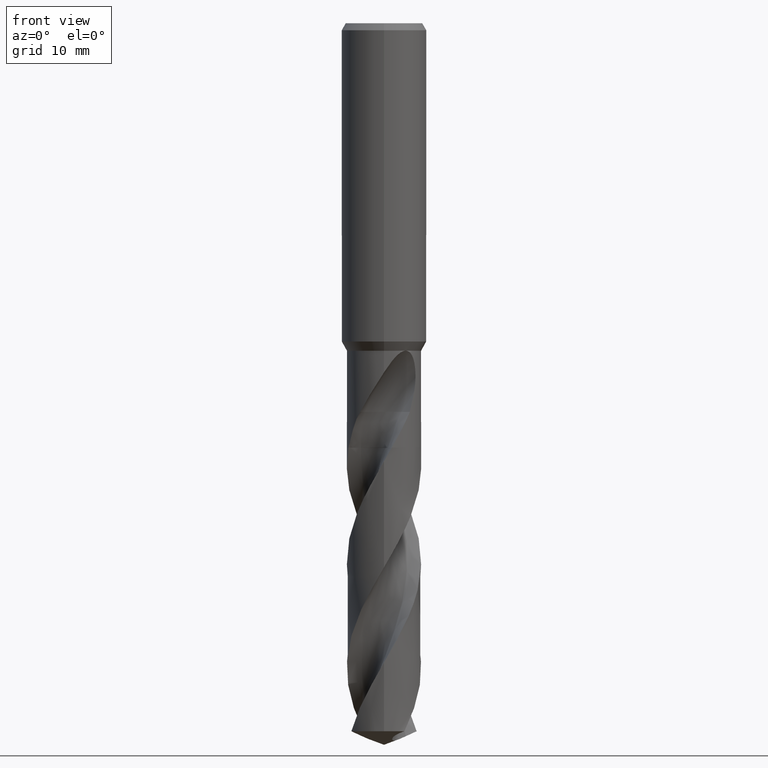
[diagram: clean part render]
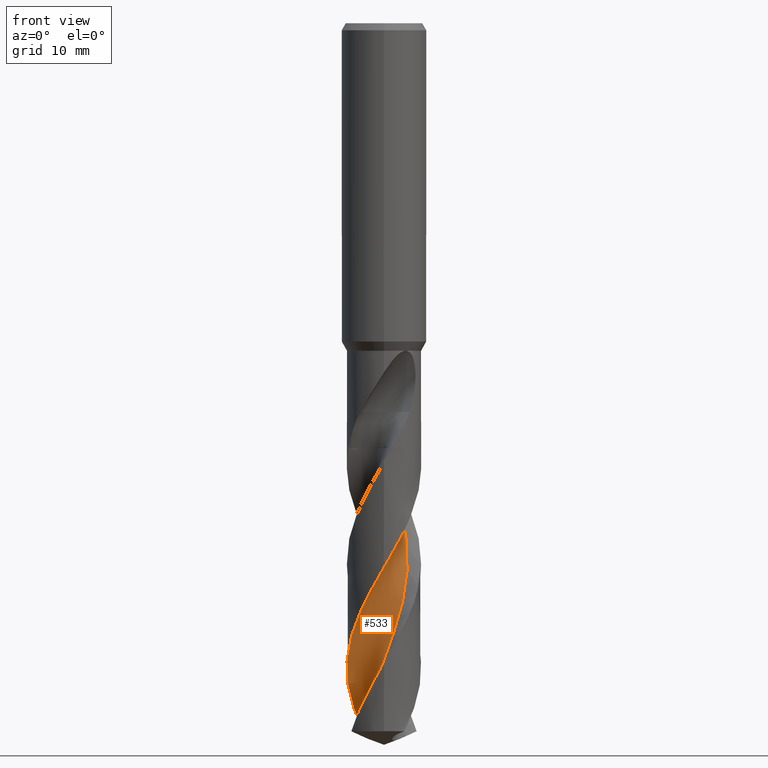
[diagram: same view with one face highlighted and labeled with its STEP entity id]
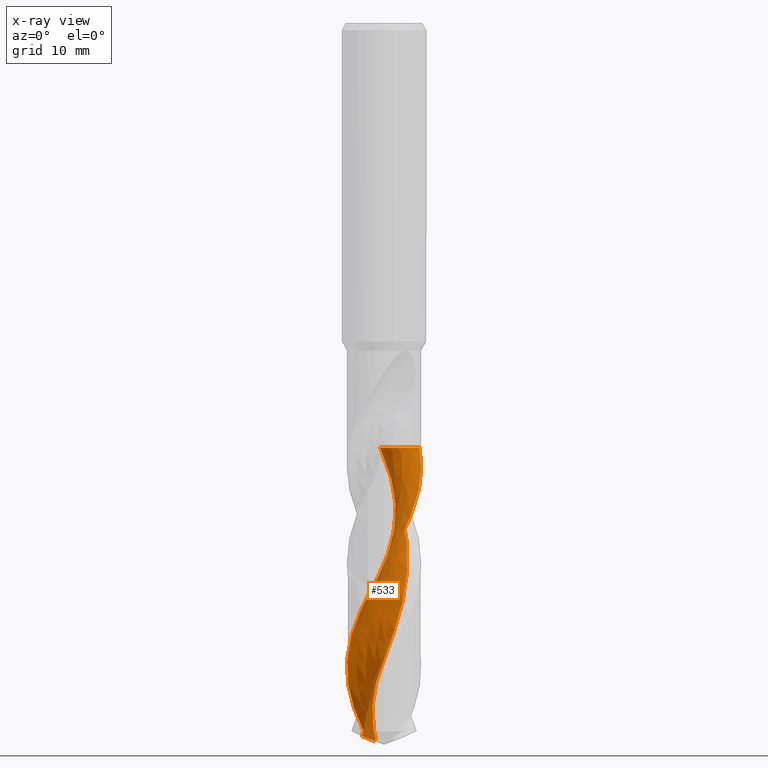
[diagram: x-ray of the same camera — body ghosted, the highlighted face saturated]
A machine part, front view. The second image highlights one B-rep face of the part: STEP entity #533.
The next image is the same camera in x-ray: the body ghosted, the highlighted face saturated — about 0% of this face is hidden behind the body in this view.
In plain terms, the highlighted face is a freeform B-spline surface patch.
Its self-contained STEP definition (entity closure, byte-faithful):
#401=VERTEX_POINT('',#995);
#445=EDGE_CURVE('',#693,#489,#1042,.T.);
#453=VERTEX_POINT('',#1051);
#467=EDGE_CURVE('',#401,#693,#1066,.T.);
#489=VERTEX_POINT('',#1093);
#533=ADVANCED_FACE('',(#1141),#1142,.F.);
#575=EDGE_CURVE('',#453,#625,#1184,.T.);
#625=VERTEX_POINT('',#1239);
#693=VERTEX_POINT('',#1312);
#801=EDGE_CURVE('',#489,#453,#1431,.T.);
#803=EDGE_CURVE('',#625,#401,#1433,.T.);
#995=CARTESIAN_POINT('',(-2.89010516153189,4.38289768934739,-100.089156270102));
#1042=B_SPLINE_CURVE_WITH_KNOTS('',3,(#3077,#3078,#3079,#3080,#3081,#3082,#3083,#3084,#3085,#3086,#3087,#3088,#3089,#3090,#3091,#3092,#3093,#3094,#3095,#3096,#3097,#3098,#3099,#3100,#3101,#3102,#3103,#3104,#3105,#3106,#3107,#3108,#3109,#3110,#3111,#3112,#3113,#3114,#3115,#3116,#3117,#3118,#3119,#3120,#3121,#3122,#3123,#3124,#3125,#3126,#3127,#3128,#3129,#3130,#3131,#3132,#3133,#3134,#3135,#3136),.UNSPECIFIED.,.F.,.F.,(4,2,2,2,2,2,2,2,2,2,2,2,2,2,2,2,2,2,2,2,2,2,2,2,2,2,2,2,2,4),(0.0,1.69604232633768,3.95654357850211,5.19424049121899,7.9902199599627,8.06944459956528,10.6110201519859,12.7712613762915,14.6149137898726,14.9937175403709,17.5299463312583,18.9288472685319,20.35117627029,22.6441457482709,23.8341706022322,26.4052815924515,28.1162914181753,28.5780080398245,31.2146760874843,32.3337493303732,33.843140532863,36.6628807183644,38.2955388338668,38.7920476707143,40.5134691139163,41.2327314637739,42.4894622868259,44.3822345116445,44.8542706479082,46.2662731762739),.UNSPECIFIED.);
#1051=CARTESIAN_POINT('',(-0.553951693116097,3.25396113428154,-60.005));
#1066=B_SPLINE_CURVE_WITH_KNOTS('',3,(#3936,#3937,#3938,#3939,#3940,#3941,#3942,#3943,#3944,#3945,#3946,#3947,#3948,#3949,#3950,#3951,#3952,#3953,#3954,#3955,#3956,#3957,#3958,#3959,#3960,#3961,#3962,#3963,#3964,#3965,#3966,#3967,#3968,#3969,#3970,#3971,#3972,#3973,#3974,#3975,#3976,#3977,#3978,#3979,#3980,#3981,#3982,#3983,#3984,#3985,#3986,#3987,#3988,#3989,#3990,#3991,#3992,#3993,#3994,#3995),.UNSPECIFIED.,.F.,.F.,(4,2,2,2,2,2,2,2,2,2,2,2,2,2,2,2,2,2,2,2,2,2,2,2,2,2,2,2,2,4),(0.0,1.69604232633768,3.95654357850211,5.19424049121899,7.9902199599627,8.06944459956528,10.6110201519859,12.7712613762915,14.6149137898726,14.9937175403709,17.5299463312583,18.9288472685319,20.35117627029,22.6441457482709,23.8341706022322,26.4052815924515,28.1162914181753,28.5780080398245,31.2146760874843,32.3337493303732,33.843140532863,36.6628807183644,38.2955388338668,38.7920476707143,40.5134691139163,41.2327314637739,42.4894622868259,44.3822345116445,44.8542706479082,46.2662731762739),.UNSPECIFIED.);
#1093=CARTESIAN_POINT('',(5.02190616105026,1.53032960307543,-60.005));
#1141=FACE_OUTER_BOUND('',#5257,.T.);
#1142=B_SPLINE_SURFACE_WITH_KNOTS('',3,3,((#5258,#5259,#5260,#5261,#5262,#5263,#5264,#5265,#5266,#5267,#5268,#5269,#5270,#5271,#5272,#5273,#5274,#5275,#5276,#5277,#5278,#5279,#5280,#5281,#5282,#5283,#5284,#5285,#5286,#5287,#5288,#5289,#5290,#5291,#5292,#5293,#5294,#5295,#5296,#5297,#5298,#5299,#5300,#5301,#5302,#5303,#5304,#5305,#5306,#5307,#5308,#5309,#5310,#5311,#5312,#5313,#5314,#5315),(#5316,#5317,#5318,#5319,#5320,#5321,#5322,#5323,#5324,#5325,#5326,#5327,#5328,#5329,#5330,#5331,#5332,#5333,#5334,#5335,#5336,#5337,#5338,#5339,#5340,#5341,#5342,#5343,#5344,#5345,#5346,#5347,#5348,#5349,#5350,#5351,#5352,#5353,#5354,#5355,#5356,#5357,#5358,#5359,#5360,#5361,#5362,#5363,#5364,#5365,#5366,#5367,#5368,#5369,#5370,#5371,#5372,#5373),(#5374,#5375,#5376,#5377,#5378,#5379,#5380,#5381,#5382,#5383,#5384,#5385,#5386,#5387,#5388,#5389,#5390,#5391,#5392,#5393,#5394,#5395,#5396,#5397,#5398,#5399,#5400,#5401,#5402,#5403,#5404,#5405,#5406,#5407,#5408,#5409,#5410,#5411,#5412,#5413,#5414,#5415,#5416,#5417,#5418,#5419,#5420,#5421,#5422,#5423,#5424,#5425,#5426,#5427,#5428,#5429,#5430,#5431),(#5432,#5433,#5434,#5435,#5436,#5437,#5438,#5439,#5440,#5441,#5442,#5443,#5444,#5445,#5446,#5447,#5448,#5449,#5450,#5451,#5452,#5453,#5454,#5455,#5456,#5457,#5458,#5459,#5460,#5461,#5462,#5463,#5464,#5465,#5466,#5467,#5468,#5469,#5470,#5471,#5472,#5473,#5474,#5475,#5476,#5477,#5478,#5479,#5480,#5481,#5482,#5483,#5484,#5485,#5486,#5487,#5488,#5489),(#5490,#5491,#5492,#5493,#5494,#5495,#5496,#5497,#5498,#5499,#5500,#5501,#5502,#5503,#5504,#5505,#5506,#5507,#5508,#5509,#5510,#5511,#5512,#5513,#5514,#5515,#5516,#5517,#5518,#5519,#5520,#5521,#5522,#5523,#5524,#5525,#5526,#5527,#5528,#5529,#5530,#5531,#5532,#5533,#5534,#5535,#5536,#5537,#5538,#5539,#5540,#5541,#5542,#5543,#5544,#5545,#5546,#5547),(#5548,#5549,#5550,#5551,#5552,#5553,#5554,#5555,#5556,#5557,#5558,#5559,#5560,#5561,#5562,#5563,#5564,#5565,#5566,#5567,#5568,#5569,#5570,#5571,#5572,#5573,#5574,#5575,#5576,#5577,#5578,#5579,#5580,#5581,#5582,#5583,#5584,#5585,#5586,#5587,#5588,#5589,#5590,#5591,#5592,#5593,#5594,#5595,#5596,#5597,#5598,#5599,#5600,#5601,#5602,#5603,#5604,#5605),(#5606,#5607,#5608,#5609,#5610,#5611,#5612,#5613,#5614,#5615,#5616,#5617,#5618,#5619,#5620,#5621,#5622,#5623,#5624,#5625,#5626,#5627,#5628,#5629,#5630,#5631,#5632,#5633,#5634,#5635,#5636,#5637,#5638,#5639,#5640,#5641,#5642,#5643,#5644,#5645,#5646,#5647,#5648,#5649,#5650,#5651,#5652,#5653,#5654,#5655,#5656,#5657,#5658,#5659,#5660,#5661,#5662,#5663),(#5664,#5665,#5666,#5667,#5668,#5669,#5670,#5671,#5672,#5673,#5674,#5675,#5676,#5677,#5678,#5679,#5680,#5681,#5682,#5683,#5684,#5685,#5686,#5687,#5688,#5689,#5690,#5691,#5692,#5693,#5694,#5695,#5696,#5697,#5698,#5699,#5700,#5701,#5702,#5703,#5704,#5705,#5706,#5707,#5708,#5709,#5710,#5711,#5712,#5713,#5714,#5715,#5716,#5717,#5718,#5719,#5720,#5721),(#5722,#5723,#5724,#5725,#5726,#5727,#5728,#5729,#5730,#5731,#5732,#5733,#5734,#5735,#5736,#5737,#5738,#5739,#5740,#5741,#5742,#5743,#5744,#5745,#5746,#5747,#5748,#5749,#5750,#5751,#5752,#5753,#5754,#5755,#5756,#5757,#5758,#5759,#5760,#5761,#5762,#5763,#5764,#5765,#5766,#5767,#5768,#5769,#5770,#5771,#5772,#5773,#5774,#5775,#5776,#5777,#5778,#5779),(#5780,#5781,#5782,#5783,#5784,#5785,#5786,#5787,#5788,#5789,#5790,#5791,#5792,#5793,#5794,#5795,#5796,#5797,#5798,#5799,#5800,#5801,#5802,#5803,#5804,#5805,#5806,#5807,#5808,#5809,#5810,#5811,#5812,#5813,#5814,#5815,#5816,#5817,#5818,#5819,#5820,#5821,#5822,#5823,#5824,#5825,#5826,#5827,#5828,#5829,#5830,#5831,#5832,#5833,#5834,#5835,#5836,#5837),(#5838,#5839,#5840,#5841,#5842,#5843,#5844,#5845,#5846,#5847,#5848,#5849,#5850,#5851,#5852,#5853,#5854,#5855,#5856,#5857,#5858,#5859,#5860,#5861,#5862,#5863,#5864,#5865,#5866,#5867,#5868,#5869,#5870,#5871,#5872,#5873,#5874,#5875,#5876,#5877,#5878,#5879,#5880,#5881,#5882,#5883,#5884,#5885,#5886,#5887,#5888,#5889,#5890,#5891,#5892,#5893,#5894,#5895)),.UNSPECIFIED.,.F.,.F.,.F.,(4,1,1,1,1,1,1,1,4),(4,1,2,2,2,2,2,2,1,2,1,2,1,2,1,2,1,2,1,2,1,2,1,2,1,2,1,2,1,2,1,2,1,2,2,4),(-2.39901857237366E-016,0.392700971525963,0.785401943051926,1.17810291457789,1.57080388610385,1.96350485762981,2.35620582915578,2.74890680068174,3.1416077722077),(0.0,0.946443982491389,1.89288796498278,2.83933194747417,3.78577592996556,4.73221991245695,5.67866389494833,7.57155185993111,9.46443982491389,11.3573277898967,13.2502157548794,15.1431037198622,17.035991684845,18.9288796498278,20.8217676148106,22.7146555797933,24.6075435447761,26.5004315097589,28.3933194747417,30.2862074397245,32.1790954047072,34.07198336969,35.9648713346728,37.8577592996556,39.7506472646383,41.6435352296211,43.5364231946039,45.4293111595867,47.3221991245695,49.2150870895522,51.107975054535,53.0008630195178,54.8937509845006,56.7866389494833,58.6795269144661,60.5724148794489),.UNSPECIFIED.);
#1184=B_SPLINE_CURVE_WITH_KNOTS('',3,(#6070,#6071,#6072,#6073,#6074,#6075,#6076,#6077,#6078,#6079,#6080,#6081,#6082,#6083,#6084,#6085,#6086,#6087,#6088,#6089,#6090,#6091,#6092,#6093,#6094,#6095,#6096,#6097,#6098,#6099,#6100,#6101,#6102,#6103,#6104,#6105,#6106,#6107,#6108,#6109,#6110,#6111,#6112,#6113,#6114,#6115,#6116,#6117,#6118,#6119,#6120,#6121,#6122,#6123,#6124,#6125,#6126,#6127),.UNSPECIFIED.,.F.,.F.,(4,1,2,2,2,2,2,2,1,2,1,2,1,2,1,2,1,2,1,2,1,2,1,2,1,2,1,2,1,2,1,2,1,2,2,4),(0.0,0.946443982491389,1.89288796498278,2.83933194747417,3.78577592996556,4.73221991245695,5.67866389494833,7.57155185993111,9.46443982491389,11.3573277898967,13.2502157548794,15.1431037198622,17.035991684845,18.9288796498278,20.8217676148106,22.7146555797933,24.6075435447761,26.5004315097589,28.3933194747417,30.2862074397245,32.1790954047072,34.07198336969,35.9648713346728,37.8577592996556,39.7506472646383,41.6435352296211,43.5364231946039,45.4293111595867,47.3221991245695,49.2150870895522,51.107975054535,53.0008630195178,54.8937509845006,56.7866389494833,58.6795269144661,60.5724148794489),.UNSPECIFIED.);
#1239=CARTESIAN_POINT('',(-3.07648059904666,-1.22456822289559,-100.794807758163));
#1312=CARTESIAN_POINT('',(3.21470154828919E-016,-5.24994219249676,-76.9146159629963));
#1431=B_SPLINE_CURVE_WITH_KNOTS('',3,(#8284,#8285,#8286,#8287,#8288,#8289,#8290,#8291,#8292,#8293,#8294,#8295,#8296,#8297,#8298,#8299,#8300,#8301,#8302,#8303),.UNSPECIFIED.,.F.,.F.,(4,2,2,2,2,2,2,2,2,4),(-11.0255180005243,-10.2962306159927,-9.56680325481353,-8.19889868134417,-6.83115351492726,-5.46414230649993,-4.09801075764606,-2.73238519870894,-1.36658236156058,-0.0),.UNSPECIFIED.);
#1433=B_SPLINE_CURVE_WITH_KNOTS('',3,(#8306,#8307,#8308,#8309,#8310,#8311,#8312,#8313,#8314,#8315,#8316,#8317,#8318,#8319,#8320,#8321,#8322,#8323,#8324,#8325),.UNSPECIFIED.,.F.,.F.,(4,2,2,2,2,2,2,2,2,4),(0.0,2.19133940920324,3.68344773043055,5.10445555249093,6.70093940896862,8.44174883602237,10.4020610931712,12.5884843293297,13.906843616011,15.2242324553587),.UNSPECIFIED.);
#3077=CARTESIAN_POINT('',(-2.8901051615319,4.38289768934741,-100.089156270102));
#3078=CARTESIAN_POINT('',(-3.12603112507274,4.2273254388367,-99.5995095148783));
#3079=CARTESIAN_POINT('',(-3.34960088165933,4.05255108882982,-99.1103201914125));
#3080=CARTESIAN_POINT('',(-3.83633144067698,3.60389280659804,-97.969155824684));
#3081=CARTESIAN_POINT('',(-4.08576132906963,3.31839936753522,-97.3228987500801));
#3082=CARTESIAN_POINT('',(-4.4208920606572,2.83917636866332,-96.3139254670834));
#3083=CARTESIAN_POINT('',(-4.52914028809523,2.66307102619708,-95.9556324763328));
#3084=CARTESIAN_POINT('',(-4.84727031929991,2.06979947668451,-94.7925276905195));
#3085=CARTESIAN_POINT('',(-5.01179413960501,1.63131405211992,-93.9964226305323));
#3086=CARTESIAN_POINT('',(-5.11920728001843,1.16456416443467,-93.1671939099345));
#3087=CARTESIAN_POINT('',(-5.1221242441394,1.15166716512589,-93.1443028472052));
#3088=CARTESIAN_POINT('',(-5.21729247490321,0.723337449507694,-92.3849184862638));
#3089=CARTESIAN_POINT('',(-5.25884605395999,0.297880134397622,-91.6564488479887));
#3090=CARTESIAN_POINT('',(-5.23952886899669,-0.490920138394774,-90.2959245085539));
#3091=CARTESIAN_POINT('',(-5.19315433300631,-0.851502767995357,-89.6688131036474));
#3092=CARTESIAN_POINT('',(-5.03881637957859,-1.50613400847199,-88.5103767454134));
#3093=CARTESIAN_POINT('',(-4.9413306963596,-1.80019844387579,-87.9798294172521));
#3094=CARTESIAN_POINT('',(-4.79365714395525,-2.14173748886121,-87.33613067871));
#3095=CARTESIAN_POINT('',(-4.76746627325916,-2.19942106530551,-87.2263614767854));
#3096=CARTESIAN_POINT('',(-4.55761531090769,-2.64020782203027,-86.3818418200341));
#3097=CARTESIAN_POINT('',(-4.32906504632685,-3.00038810224256,-85.655002832788));
#3098=CARTESIAN_POINT('',(-3.91043709931445,-3.51078939209973,-84.5161751324585));
#3099=CARTESIAN_POINT('',(-3.74977275993258,-3.68189380659992,-84.1099709981162));
#3100=CARTESIAN_POINT('',(-3.40348536111457,-4.00440548845531,-83.2934987357573));
#3101=CARTESIAN_POINT('',(-3.21791877679513,-4.15501050287858,-82.8833259914254));
#3102=CARTESIAN_POINT('',(-2.70772435735555,-4.51426145102256,-81.8086845148264));
#3103=CARTESIAN_POINT('',(-2.36965612240539,-4.70051773765695,-81.1432901826052));
#3104=CARTESIAN_POINT('',(-1.8297660175696,-4.92481809771572,-80.1356583558018));
#3105=CARTESIAN_POINT('',(-1.64104749051285,-4.99087792674438,-79.7922242084909));
#3106=CARTESIAN_POINT('',(-1.03401339341714,-5.16518667139937,-78.7043237311908));
#3107=CARTESIAN_POINT('',(-0.606067867706179,-5.23269115610077,-77.9587252011979));
#3108=CARTESIAN_POINT('',(0.112693439674698,-5.25659213077119,-76.7202797923568));
#3109=CARTESIAN_POINT('',(0.399749176052545,-5.24253153279672,-76.2277028717759));
#3110=CARTESIAN_POINT('',(0.760415984674996,-5.19515175182692,-75.5986910976799));
#3111=CARTESIAN_POINT('',(0.836725040831433,-5.18340781157335,-75.4649118378971));
#3112=CARTESIAN_POINT('',(1.34733691629393,-5.09325138861594,-74.568079655969));
#3113=CARTESIAN_POINT('',(1.77059354238548,-4.96204671316346,-73.8137792183439));
#3114=CARTESIAN_POINT('',(2.34335102548353,-4.70166287897628,-72.7276439004102));
#3115=CARTESIAN_POINT('',(2.5095500928279,-4.61509042125619,-72.4030688698153));
#3116=CARTESIAN_POINT('',(2.88853264548823,-4.39113162720045,-71.6429474581602));
#3117=CARTESIAN_POINT('',(3.09679008853746,-4.24685630534213,-71.208190048897));
#3118=CARTESIAN_POINT('',(3.66245483897656,-3.79104555386309,-69.957240341705));
#3119=CARTESIAN_POINT('',(3.98897708809037,-3.44581210802026,-69.1409468496764));
#3120=CARTESIAN_POINT('',(4.42464229444953,-2.83888169474369,-67.8544219256852));
#3121=CARTESIAN_POINT('',(4.56647417942168,-2.60451979017197,-67.3846009404032));
#3122=CARTESIAN_POINT('',(4.72659746844339,-2.28643823579801,-66.7687196411048));
#3123=CARTESIAN_POINT('',(4.76212581058806,-2.21148750531356,-66.624962681427));
#3124=CARTESIAN_POINT('',(4.91302227827379,-1.87262066043252,-65.9833731322141));
#3125=CARTESIAN_POINT('',(5.00850011757267,-1.59999713946767,-65.4880124172875));
#3126=CARTESIAN_POINT('',(5.11152154876554,-1.20353446778928,-64.7829690787855));
#3127=CARTESIAN_POINT('',(5.13782386028333,-1.08575859606639,-64.5753424893121));
#3128=CARTESIAN_POINT('',(5.19884767790033,-0.760206614566056,-64.0042952064219));
#3129=CARTESIAN_POINT('',(5.22511627940783,-0.551286305545956,-63.6400676220906));
#3130=CARTESIAN_POINT('',(5.25938788370471,-0.0254551505790213,-62.7300485734613));
#3131=CARTESIAN_POINT('',(5.25135904879003,0.291849449268539,-62.1863370497658));
#3132=CARTESIAN_POINT('',(5.20560227868835,0.685157787644466,-61.503697917373));
#3133=CARTESIAN_POINT('',(5.19470646769679,0.763368699510361,-61.3674674420904));
#3134=CARTESIAN_POINT('',(5.1442606942825,1.07411375179131,-60.8232343161817));
#3135=CARTESIAN_POINT('',(5.09080591005779,1.30425388010108,-60.4129558671829));
#3136=CARTESIAN_POINT('',(5.02186622742537,1.53046062628461,-60.0047635599666));
#3936=CARTESIAN_POINT('',(-2.8901051615319,4.38289768934741,-100.089156270102));
#3937=CARTESIAN_POINT('',(-3.12603112507274,4.2273254388367,-99.5995095148783));
#3938=CARTESIAN_POINT('',(-3.34960088165933,4.05255108882982,-99.1103201914125));
#3939=CARTESIAN_POINT('',(-3.83633144067698,3.60389280659804,-97.969155824684));
#3940=CARTESIAN_POINT('',(-4.08576132906963,3.31839936753522,-97.3228987500801));
#3941=CARTESIAN_POINT('',(-4.4208920606572,2.83917636866332,-96.3139254670834));
#3942=CARTESIAN_POINT('',(-4.52914028809523,2.66307102619708,-95.9556324763328));
#3943=CARTESIAN_POINT('',(-4.84727031929991,2.06979947668451,-94.7925276905195));
#3944=CARTESIAN_POINT('',(-5.01179413960501,1.63131405211992,-93.9964226305323));
#3945=CARTESIAN_POINT('',(-5.11920728001843,1.16456416443467,-93.1671939099345));
#3946=CARTESIAN_POINT('',(-5.1221242441394,1.15166716512589,-93.1443028472052));
#3947=CARTESIAN_POINT('',(-5.21729247490321,0.723337449507694,-92.3849184862638));
#3948=CARTESIAN_POINT('',(-5.25884605395999,0.297880134397622,-91.6564488479887));
#3949=CARTESIAN_POINT('',(-5.23952886899669,-0.490920138394774,-90.2959245085539));
#3950=CARTESIAN_POINT('',(-5.19315433300631,-0.851502767995357,-89.6688131036474));
#3951=CARTESIAN_POINT('',(-5.03881637957859,-1.50613400847199,-88.5103767454134));
#3952=CARTESIAN_POINT('',(-4.9413306963596,-1.80019844387579,-87.9798294172521));
#3953=CARTESIAN_POINT('',(-4.79365714395525,-2.14173748886121,-87.33613067871));
#3954=CARTESIAN_POINT('',(-4.76746627325916,-2.19942106530551,-87.2263614767854));
#3955=CARTESIAN_POINT('',(-4.55761531090769,-2.64020782203027,-86.3818418200341));
#3956=CARTESIAN_POINT('',(-4.32906504632685,-3.00038810224256,-85.655002832788));
#3957=CARTESIAN_POINT('',(-3.91043709931445,-3.51078939209973,-84.5161751324585));
#3958=CARTESIAN_POINT('',(-3.74977275993258,-3.68189380659992,-84.1099709981162));
#3959=CARTESIAN_POINT('',(-3.40348536111457,-4.00440548845531,-83.2934987357573));
#3960=CARTESIAN_POINT('',(-3.21791877679513,-4.15501050287858,-82.8833259914254));
#3961=CARTESIAN_POINT('',(-2.70772435735555,-4.51426145102256,-81.8086845148264));
#3962=CARTESIAN_POINT('',(-2.36965612240539,-4.70051773765695,-81.1432901826052));
#3963=CARTESIAN_POINT('',(-1.8297660175696,-4.92481809771572,-80.1356583558018));
#3964=CARTESIAN_POINT('',(-1.64104749051285,-4.99087792674438,-79.7922242084909));
#3965=CARTESIAN_POINT('',(-1.03401339341714,-5.16518667139937,-78.7043237311908));
#3966=CARTESIAN_POINT('',(-0.606067867706179,-5.23269115610077,-77.9587252011979));
#3967=CARTESIAN_POINT('',(0.112693439674698,-5.25659213077119,-76.7202797923568));
#3968=CARTESIAN_POINT('',(0.399749176052545,-5.24253153279672,-76.2277028717759));
#3969=CARTESIAN_POINT('',(0.760415984674996,-5.19515175182692,-75.5986910976799));
#3970=CARTESIAN_POINT('',(0.836725040831433,-5.18340781157335,-75.4649118378971));
#3971=CARTESIAN_POINT('',(1.34733691629393,-5.09325138861594,-74.568079655969));
#3972=CARTESIAN_POINT('',(1.77059354238548,-4.96204671316346,-73.8137792183439));
#3973=CARTESIAN_POINT('',(2.34335102548353,-4.70166287897628,-72.7276439004102));
#3974=CARTESIAN_POINT('',(2.5095500928279,-4.61509042125619,-72.4030688698153));
#3975=CARTESIAN_POINT('',(2.88853264548823,-4.39113162720045,-71.6429474581602));
#3976=CARTESIAN_POINT('',(3.09679008853746,-4.24685630534213,-71.208190048897));
#3977=CARTESIAN_POINT('',(3.66245483897656,-3.79104555386309,-69.957240341705));
#3978=CARTESIAN_POINT('',(3.98897708809037,-3.44581210802026,-69.1409468496764));
#3979=CARTESIAN_POINT('',(4.42464229444953,-2.83888169474369,-67.8544219256852));
#3980=CARTESIAN_POINT('',(4.56647417942168,-2.60451979017197,-67.3846009404032));
#3981=CARTESIAN_POINT('',(4.72659746844339,-2.28643823579801,-66.7687196411048));
#3982=CARTESIAN_POINT('',(4.76212581058806,-2.21148750531356,-66.624962681427));
#3983=CARTESIAN_POINT('',(4.91302227827379,-1.87262066043252,-65.9833731322141));
#3984=CARTESIAN_POINT('',(5.00850011757267,-1.59999713946767,-65.4880124172875));
#3985=CARTESIAN_POINT('',(5.11152154876554,-1.20353446778928,-64.7829690787855));
#3986=CARTESIAN_POINT('',(5.13782386028333,-1.08575859606639,-64.5753424893121));
#3987=CARTESIAN_POINT('',(5.19884767790033,-0.760206614566056,-64.0042952064219));
#3988=CARTESIAN_POINT('',(5.22511627940783,-0.551286305545956,-63.6400676220906));
#3989=CARTESIAN_POINT('',(5.25938788370471,-0.0254551505790213,-62.7300485734613));
#3990=CARTESIAN_POINT('',(5.25135904879003,0.291849449268539,-62.1863370497658));
#3991=CARTESIAN_POINT('',(5.20560227868835,0.685157787644466,-61.503697917373));
#3992=CARTESIAN_POINT('',(5.19470646769679,0.763368699510361,-61.3674674420904));
#3993=CARTESIAN_POINT('',(5.1442606942825,1.07411375179131,-60.8232343161817));
#3994=CARTESIAN_POINT('',(5.09080591005779,1.30425388010108,-60.4129558671829));
#3995=CARTESIAN_POINT('',(5.02186622742537,1.53046062628461,-60.0047635599666));
#5257=EDGE_LOOP('',(#9380,#9381,#9382,#9383,#9384));
#5258=CARTESIAN_POINT('',(2.47487373408221,7.5498737340822,-54.943));
#5259=CARTESIAN_POINT('',(2.67342751052768,7.53997853256085,-55.1878463051269));
#5260=CARTESIAN_POINT('',(3.07439280913202,7.4836253165222,-55.6799239865903));
#5261=CARTESIAN_POINT('',(3.4752776383567,7.33520199111018,-56.1737801725746));
#5262=CARTESIAN_POINT('',(3.86706847927309,7.13141047022982,-56.6645429002527));
#5263=CARTESIAN_POINT('',(4.05828323779697,7.01594834615407,-56.9092181697431));
#5264=CARTESIAN_POINT('',(4.42768038919246,6.75724907966935,-57.3961079109377));
#5265=CARTESIAN_POINT('',(4.60712238720866,6.62595477936178,-57.6397273262784));
#5266=CARTESIAN_POINT('',(4.95787541789662,6.36183527659157,-58.1290828631115));
#5267=CARTESIAN_POINT('',(5.12852280807286,6.2257425168791,-58.3742325355684));
#5268=CARTESIAN_POINT('',(5.46041404062673,5.94662084062227,-58.8662108862423));
#5269=CARTESIAN_POINT('',(5.62042326828035,5.79920744466536,-59.1120144702665));
#5270=CARTESIAN_POINT('',(6.07981371307679,5.33365918647601,-59.8482808209038));
#5271=CARTESIAN_POINT('',(6.36046016699752,4.99733877302444,-60.3387430500055));
#5272=CARTESIAN_POINT('',(6.86015149368743,4.27800212510885,-61.3178493024466));
#5273=CARTESIAN_POINT('',(7.30389566049918,3.5216659870804,-62.29802963016));
#5274=CARTESIAN_POINT('',(7.6206752506476,2.70459022041254,-63.2793701011488));
#5275=CARTESIAN_POINT('',(7.86630652432282,1.86493989606671,-64.2597283941685));
#5276=CARTESIAN_POINT('',(8.04602203652455,1.00740739959216,-65.2399381805161));
#5277=CARTESIAN_POINT('',(8.08572759512434,0.131767751415383,-66.2206529695545));
#5278=CARTESIAN_POINT('',(8.05041050036129,-0.742592684799922,-67.2011722980207));
#5279=CARTESIAN_POINT('',(7.94684659152438,-1.61273907249469,-68.1814650601465));
#5280=CARTESIAN_POINT('',(7.70496619378514,-2.45522465428737,-69.1621619746537));
#5281=CARTESIAN_POINT('',(7.39258363928511,-3.27257884592771,-70.1426464834381));
#5282=CARTESIAN_POINT('',(7.01686074813866,-4.06420176396863,-71.1229269252564));
#5283=CARTESIAN_POINT('',(6.51878903967785,-4.78548254884284,-72.1036347693696));
#5284=CARTESIAN_POINT('',(5.96185245394768,-5.46041244718305,-73.0841295066205));
#5285=CARTESIAN_POINT('',(5.35311786644764,-6.09072915874775,-74.0644094168164));
#5286=CARTESIAN_POINT('',(4.65094685782671,-6.61536812504895,-75.045112281161));
#5287=CARTESIAN_POINT('',(3.90781761379029,-7.07733596600542,-76.0256086449831));
#5288=CARTESIAN_POINT('',(3.129816934602,-7.48049878612146,-77.0058937097634));
#5289=CARTESIAN_POINT('',(2.29694499978359,-7.7536656782686,-77.9865957631983));
#5290=CARTESIAN_POINT('',(1.44523515550134,-7.95434332649601,-78.9670824794499));
#5291=CARTESIAN_POINT('',(0.579241255851254,-8.08816212060412,-79.947361840279));
#5292=CARTESIAN_POINT('',(-0.297270782803529,-8.08126300247737,-80.9280682147604));
#5293=CARTESIAN_POINT('',(-1.16849851750898,-7.99964244505742,-81.9085642399171));
#5294=CARTESIAN_POINT('',(-2.03191569787772,-7.8501071560189,-82.8888457917596));
#5295=CARTESIAN_POINT('',(-2.86039255725638,-7.56390252775019,-83.8695499242177));
#5296=CARTESIAN_POINT('',(-3.6600288053008,-7.20860478104824,-84.8500470114586));
#5297=CARTESIAN_POINT('',(-4.43060370238751,-6.79142435705246,-85.8303320000843));
#5298=CARTESIAN_POINT('',(-5.12445552759961,-6.25582471208297,-86.8110294532117));
#5299=CARTESIAN_POINT('',(-5.76891889445161,-5.66392038653411,-87.7915078651221));
#5300=CARTESIAN_POINT('',(-6.36609237884503,-5.02263634052836,-88.7717841541939));
#5301=CARTESIAN_POINT('',(-6.85274045342346,-4.29358916741857,-89.7525062009201));
#5302=CARTESIAN_POINT('',(-7.27458634340609,-3.52693286782979,-90.7330310019216));
#5303=CARTESIAN_POINT('',(-7.6358696359176,-2.72861988116524,-91.7133238371962));
#5304=CARTESIAN_POINT('',(-7.86455125860027,-1.8825041115237,-92.6939804225804));
#5305=CARTESIAN_POINT('',(-8.01994418051895,-1.02145772404071,-93.6743891597096));
#5306=CARTESIAN_POINT('',(-8.10772208092199,-0.149593302275281,-94.6546250897801));
#5307=CARTESIAN_POINT('',(-8.05404625716164,0.725446567349192,-95.6354344361638));
#5308=CARTESIAN_POINT('',(-7.92580306420426,1.5912754286819,-96.6161485336438));
#5309=CARTESIAN_POINT('',(-7.73056701045527,2.44553990825768,-97.5966110187834));
#5310=CARTESIAN_POINT('',(-7.40189391735927,3.25763489136302,-98.5771668473791));
#5311=CARTESIAN_POINT('',(-7.00637663063906,4.03733218064775,-99.5572054867));
#5312=CARTESIAN_POINT('',(-6.77700613297327,4.41101312634371,-100.047210543409));
#5313=CARTESIAN_POINT('',(-6.25716173392401,5.11503954821899,-101.027300440192));
#5314=CARTESIAN_POINT('',(-5.97358354089432,5.44669327750087,-101.516859959728));
#5315=CARTESIAN_POINT('',(-5.66972218601171,5.75623498100793,-102.006928803265));
#5316=CARTESIAN_POINT('',(2.79882175776234,7.22589821207784,-54.943));
#5317=CARTESIAN_POINT('',(2.99755903619002,7.21618649603325,-55.1878512475892));
#5318=CARTESIAN_POINT('',(3.39411409766309,7.15531491204915,-55.6801913874101));
#5319=CARTESIAN_POINT('',(3.78031604060004,6.99309448305246,-56.1745058132688));
#5320=CARTESIAN_POINT('',(4.15133318584506,6.77185608101794,-56.6653244008583));
#5321=CARTESIAN_POINT('',(4.33108335969935,6.64755155967086,-56.9099432360345));
#5322=CARTESIAN_POINT('',(4.67529783088999,6.37147451480823,-57.3963707332069));
#5323=CARTESIAN_POINT('',(4.84284982648889,6.23289452316655,-57.6397795963661));
#5324=CARTESIAN_POINT('',(5.17146711790961,5.95632045537494,-58.1290101833491));
#5325=CARTESIAN_POINT('',(5.33132925643363,5.81476114358753,-58.3741639469747));
#5326=CARTESIAN_POINT('',(5.64223591247653,5.52593467930176,-58.8663833064185));
#5327=CARTESIAN_POINT('',(5.79128105772267,5.3739321907883,-59.11228134144));
#5328=CARTESIAN_POINT('',(6.21634163940516,4.89564287715039,-59.8486721651037));
#5329=CARTESIAN_POINT('',(6.47312941469025,4.55254100294966,-60.3391644606841));
#5330=CARTESIAN_POINT('',(6.92328025684933,3.82351991637894,-61.3180780616273));
#5331=CARTESIAN_POINT('',(7.31769652320999,3.06174144136964,-62.2982149199662));
#5332=CARTESIAN_POINT('',(7.58502336804173,2.24714508572219,-63.2796731992754));
#5333=CARTESIAN_POINT('',(7.78110579442975,1.41408764305511,-64.2600128008011));
#5334=CARTESIAN_POINT('',(7.9124595272026,0.567087405324159,-65.2401832454776));
#5335=CARTESIAN_POINT('',(7.90606800401384,-0.290430364373805,-66.2209288866366));
#5336=CARTESIAN_POINT('',(7.82583172790029,-1.14270891307139,-67.2014518829784));
#5337=CARTESIAN_POINT('',(7.67974749169862,-1.98741390302668,-68.1817168432298));
#5338=CARTESIAN_POINT('',(7.39995974613171,-2.79800642525721,-69.1624421292708));
#5339=CARTESIAN_POINT('',(7.05206873738772,-3.58011370419094,-70.142925464335));
#5340=CARTESIAN_POINT('',(6.64417559554506,-4.33406925277773,-71.1231763930611));
#5341=CARTESIAN_POINT('',(6.12035148852348,-5.01302628098465,-72.103914134413));
#5342=CARTESIAN_POINT('',(5.5410034639889,-5.64320893331087,-73.0844091064079));
#5343=CARTESIAN_POINT('',(4.91379831053824,-6.2275541827926,-74.0646594387891));
#5344=CARTESIAN_POINT('',(4.20072947775457,-6.70387019395131,-75.0453915013246));
#5345=CARTESIAN_POINT('',(3.45064087991695,-7.11629154973248,-76.0258883346348));
#5346=CARTESIAN_POINT('',(2.66980350688152,-7.47000015665661,-77.0061445233056));
#5347=CARTESIAN_POINT('',(1.84202152295012,-7.69389035111221,-77.986875706396));
#5348=CARTESIAN_POINT('',(0.999526431181234,-7.84538463384847,-78.9673614836715));
#5349=CARTESIAN_POINT('',(0.146625666115108,-7.93142473341297,-79.947611237495));
#5350=CARTESIAN_POINT('',(-0.709336842101493,-7.8794459518648,-80.9283472274151));
#5351=CARTESIAN_POINT('',(-1.5561348454405,-7.75415018043899,-81.908843780746));
#5352=CARTESIAN_POINT('',(-2.39189567045405,-7.56351143972124,-82.8890959689452));
#5353=CARTESIAN_POINT('',(-3.18651619732551,-7.24114614214726,-83.8698294822272));
#5354=CARTESIAN_POINT('',(-3.94907108136198,-6.85225850422589,-84.8503270389562));
#5355=CARTESIAN_POINT('',(-4.68032509917902,-6.40495080573101,-85.8305829959145));
#5356=CARTESIAN_POINT('',(-5.33055033925859,-5.84588155755392,-86.81130884805));
#5357=CARTESIAN_POINT('',(-5.92914737658029,-5.23397260915323,-87.7917857341241));
#5358=CARTESIAN_POINT('',(-6.47943719735446,-4.57668123001169,-88.7720325332734));
#5359=CARTESIAN_POINT('',(-6.91724317154329,-3.83931161648106,-89.7527863110871));
#5360=CARTESIAN_POINT('',(-7.28922756452279,-3.06833268148611,-90.7333141637611));
#5361=CARTESIAN_POINT('',(-7.60097151955868,-2.26981262572823,-91.7135766874224));
#5362=CARTESIAN_POINT('',(-7.78073595106524,-1.43139139145909,-92.6942568832277));
#5363=CARTESIAN_POINT('',(-7.88753304247749,-0.582146012252024,-93.6746595170118));
#5364=CARTESIAN_POINT('',(-7.9282910211764,0.274116134920491,-94.6548698457999));
#5365=CARTESIAN_POINT('',(-7.83063558583138,1.12621862134999,-95.6357213062338));
#5366=CARTESIAN_POINT('',(-7.66001029574579,1.96528688973155,-96.6164472582878));
#5367=CARTESIAN_POINT('',(-7.42522452784438,2.78974967505844,-97.5968700472869));
#5368=CARTESIAN_POINT('',(-7.06236850065895,3.5662525974631,-98.5774330724129));
#5369=CARTESIAN_POINT('',(-6.63540651644129,4.30733842441988,-99.5574577444634));
#5370=CARTESIAN_POINT('',(-6.39189409957199,4.66046084596962,-100.047479221832));
#5371=CARTESIAN_POINT('',(-5.84705177854748,5.32081870002962,-101.027604212848));
#5372=CARTESIAN_POINT('',(-5.55325751701977,5.63048688107613,-101.517109180515));
#5373=CARTESIAN_POINT('',(-5.24109970629415,5.91805327085883,-102.00719686226));
#5374=CARTESIAN_POINT('',(3.31774813583966,6.44926134261891,-54.9429999999998));
#5375=CARTESIAN_POINT('',(3.51692530869871,6.43984355102312,-55.1878593772005));
#5376=CARTESIAN_POINT('',(3.90286492689635,6.37169096815953,-55.6806311755743));
#5377=CARTESIAN_POINT('',(4.25422096870591,6.18772059963492,-56.1756992568522));
#5378=CARTESIAN_POINT('',(4.57676146277358,5.93985667359846,-56.6666097182059));
#5379=CARTESIAN_POINT('',(4.73007095538821,5.80243019725408,-56.9111357321076));
#5380=CARTESIAN_POINT('',(5.01701996479117,5.50161946102478,-57.3968029949251));
#5381=CARTESIAN_POINT('',(5.15789973441853,5.35319939350528,-57.6398655730384));
#5382=CARTESIAN_POINT('',(5.43730212036113,5.06052399923789,-58.1288906393539));
#5383=CARTESIAN_POINT('',(5.5734244608384,4.91232279054823,-58.374051135994));
#5384=CARTESIAN_POINT('',(5.83851156925831,4.61243564069552,-58.8666668868332));
#5385=CARTESIAN_POINT('',(5.96380825280676,4.4556168646773,-59.1127202726103));
#5386=CARTESIAN_POINT('',(6.31515696057128,3.96550247265357,-59.8493157715265));
#5387=CARTESIAN_POINT('',(6.52154066538126,3.61832828068139,-60.3398575374956));
#5388=CARTESIAN_POINT('',(6.86878022364484,2.88964285634411,-61.3184543043589));
#5389=CARTESIAN_POINT('',(7.16239726614759,2.1365979646942,-62.2985196581027));
#5390=CARTESIAN_POINT('',(7.33182539552021,1.34662487701685,-63.2801716977019));
#5391=CARTESIAN_POINT('',(7.43145274882771,0.54645419108096,-64.2604805580568));
#5392=CARTESIAN_POINT('',(7.47029158793163,-0.2602542320431,-65.2405863091014));
#5393=CARTESIAN_POINT('',(7.37893169753887,-1.06320476586921,-66.221382659293));
#5394=CARTESIAN_POINT('',(7.21765715837992,-1.85346611947196,-67.2019117318501));
#5395=CARTESIAN_POINT('',(6.99666727857923,-2.6303902317607,-68.1821309506464));
#5396=CARTESIAN_POINT('',(6.65376348744972,-3.36213572876898,-69.162902860271));
#5397=CARTESIAN_POINT('',(6.2488869506495,-4.05964357789337,-70.1433843307632));
#5398=CARTESIAN_POINT('',(5.79164578301365,-4.72548734012317,-71.1235866902587));
#5399=CARTESIAN_POINT('',(5.23315833719039,-5.30957386381214,-72.1043735604355));
#5400=CARTESIAN_POINT('',(4.62679120351176,-5.84136868681253,-73.084868997097));
#5401=CARTESIAN_POINT('',(3.98093388505495,-6.32644527089426,-74.0650706372357));
#5402=CARTESIAN_POINT('',(3.26529025944971,-6.70180207459062,-75.0458507030443));
#5403=CARTESIAN_POINT('',(2.52098869904408,-7.01238382652118,-76.026348359143));
#5404=CARTESIAN_POINT('',(1.75414528793937,-7.26607679415181,-77.0065570821585));
#5405=CARTESIAN_POINT('',(0.956136586360836,-7.39345842588208,-77.9873359942271));
#5406=CARTESIAN_POINT('',(0.151625550846977,-7.45027105559363,-78.9678204838915));
#5407=CARTESIAN_POINT('',(-0.656094603277907,-7.44598056809057,-79.948021300453));
#5408=CARTESIAN_POINT('',(-1.45304019654063,-7.31203318701179,-80.9288062147067));
#5409=CARTESIAN_POINT('',(-2.23362096417692,-7.10912025018725,-81.9093034336427));
#5410=CARTESIAN_POINT('',(-2.99773538601254,-6.84728978696928,-82.8895075063337));
#5411=CARTESIAN_POINT('',(-3.71027774776709,-6.4660818446916,-83.8702892131127));
#5412=CARTESIAN_POINT('',(-4.38532802214455,-6.02477442457839,-84.8507876455999));
#5413=CARTESIAN_POINT('',(-5.0259763366707,-5.53286137989313,-85.8309956783946));
#5414=CARTESIAN_POINT('',(-5.57963376565797,-4.94421150115914,-86.8117685598718));
#5415=CARTESIAN_POINT('',(-6.07856235842821,-4.31054107109311,-87.7922425414718));
#5416=CARTESIAN_POINT('',(-6.52873905038518,-3.63988571767188,-88.7724411730043));
#5417=CARTESIAN_POINT('',(-6.86557187340631,-2.90529741992101,-89.7532469267425));
#5418=CARTESIAN_POINT('',(-7.13613530025569,-2.14550313751081,-90.7337799486932));
#5419=CARTESIAN_POINT('',(-7.34873911357111,-1.36626901151382,-91.7139924677679));
#5420=CARTESIAN_POINT('',(-7.43374957484552,-0.562686207043029,-92.6947116500239));
#5421=CARTESIAN_POINT('',(-7.44806832006785,0.243637372819111,-93.6751040892123));
#5422=CARTESIAN_POINT('',(-7.40101071112314,1.05000339963055,-94.6552725314837));
#5423=CARTESIAN_POINT('',(-7.22453588850793,1.83875171834284,-95.6361929110782));
#5424=CARTESIAN_POINT('',(-6.97980600660835,2.60745626129068,-96.6169387676847));
#5425=CARTESIAN_POINT('',(-6.67778847293267,3.35660072231372,-97.5972959950767));
#5426=CARTESIAN_POINT('',(-6.26073467224841,4.0483411964729,-98.5778708638202));
#5427=CARTESIAN_POINT('',(-5.7862508685976,4.69971596506505,-99.5578726898593));
#5428=CARTESIAN_POINT('',(-5.52263594105303,5.00610629117096,-100.047921286978));
#5429=CARTESIAN_POINT('',(-4.94517370991343,5.56920459232421,-101.028103644982));
#5430=CARTESIAN_POINT('',(-4.63969445915168,5.8308483915003,-101.517519083123));
#5431=CARTESIAN_POINT('',(-4.31968601268772,6.07117421564884,-102.007637732757));
#5432=CARTESIAN_POINT('',(3.59111522779533,5.0750036311512,-54.9429999999999));
#5433=CARTESIAN_POINT('',(3.79107078891808,5.06574067682886,-55.1878644529412));
#5434=CARTESIAN_POINT('',(4.15811835580676,4.99359104066413,-55.6809057168943));
#5435=CARTESIAN_POINT('',(4.4486956531354,4.7994791568598,-56.1764442729616));
#5436=CARTESIAN_POINT('',(4.68876641024041,4.54254195309227,-56.6674120887365));
#5437=CARTESIAN_POINT('',(4.79789791794035,4.40210786807531,-56.9118801593071));
#5438=CARTESIAN_POINT('',(4.99128171416224,4.09989203876111,-57.39707283597));
#5439=CARTESIAN_POINT('',(5.08954680934495,3.95314557572615,-57.6399192413955));
#5440=CARTESIAN_POINT('',(5.29149765160304,3.66640675779266,-58.128816016322));
#5441=CARTESIAN_POINT('',(5.39090539990779,3.52262823501536,-58.3739807153539));
#5442=CARTESIAN_POINT('',(5.58614028184914,3.23371446308394,-58.8668439116806));
#5443=CARTESIAN_POINT('',(5.67575844884783,3.08385338737063,-59.1129942715957));
#5444=CARTESIAN_POINT('',(5.91815925421725,2.61966454561486,-59.8497175627797));
#5445=CARTESIAN_POINT('',(6.05234855437946,2.29578087413633,-60.3402901945873));
#5446=CARTESIAN_POINT('',(6.25715253735462,1.62663743647945,-61.3186891786736));
#5447=CARTESIAN_POINT('',(6.41608212283083,0.943560715710195,-62.2987098888058));
#5448=CARTESIAN_POINT('',(6.46396420412763,0.243912711170883,-63.2804828967608));
#5449=CARTESIAN_POINT('',(6.4487899627317,-0.45530886099764,-64.2607725519559));
#5450=CARTESIAN_POINT('',(6.38253893642878,-1.15306706642257,-65.2408379194513));
#5451=CARTESIAN_POINT('',(6.20474301236431,-1.83161480326914,-66.2216659487007));
#5452=CARTESIAN_POINT('',(5.96675591580588,-2.4894042636154,-67.2021987781053));
#5453=CARTESIAN_POINT('',(5.68086161132706,-3.12938881136665,-68.1823894600371));
#5454=CARTESIAN_POINT('',(5.29574548191692,-3.71562569766744,-69.1631904945301));
#5455=CARTESIAN_POINT('',(4.86045528390329,-4.26317171108716,-70.1436707626683));
#5456=CARTESIAN_POINT('',(4.38540184890636,-4.77857002594634,-71.1238428148178));
#5457=CARTESIAN_POINT('',(3.83333391989978,-5.21127381881884,-72.1046603936503));
#5458=CARTESIAN_POINT('',(3.24599986095076,-5.59119927161385,-73.0851560548108));
#5459=CARTESIAN_POINT('',(2.63127732044452,-5.9279887803197,-74.0653273515194));
#5460=CARTESIAN_POINT('',(1.9700210293235,-6.16194478247376,-75.0461373556032));
#5461=CARTESIAN_POINT('',(1.29220117765345,-6.3347057048594,-76.0266355410179));
#5462=CARTESIAN_POINT('',(0.602166703018463,-6.45781691058446,-77.0068145913138));
#5463=CARTESIAN_POINT('',(-0.0991772886652871,-6.46853553452188,-77.9876233929184));
#5464=CARTESIAN_POINT('',(-0.796692732743995,-6.41593052883317,-78.9681069582468));
#5465=CARTESIAN_POINT('',(-1.48994105545251,-6.31238389885739,-79.9482773455112));
#5466=CARTESIAN_POINT('',(-2.15803891335656,-6.09871232289164,-80.9290926816654));
#5467=CARTESIAN_POINT('',(-2.80229069107618,-5.82623926658183,-81.9095904352749));
#5468=CARTESIAN_POINT('',(-3.4262401773307,-5.50687066421058,-82.8897643625514));
#5469=CARTESIAN_POINT('',(-3.99124893328479,-5.09122784715528,-83.8705762429281));
#5470=CARTESIAN_POINT('',(-4.51493197084814,-4.62750233785319,-84.8510751439606));
#5471=CARTESIAN_POINT('',(-5.00440098083863,-4.12578168424979,-85.8312533611312));
#5472=CARTESIAN_POINT('',(-5.40724105644061,-3.55156995935635,-86.8120554530814));
#5473=CARTESIAN_POINT('',(-5.75554359414814,-2.94495447828695,-87.7925277927776));
#5474=CARTESIAN_POINT('',(-6.05929852628761,-2.31324773914374,-88.7726961760795));
#5475=CARTESIAN_POINT('',(-6.25778593100381,-1.64047799627433,-89.753534571373));
#5476=CARTESIAN_POINT('',(-6.3942072186732,-0.954405824584022,-90.7340706171918));
#5477=CARTESIAN_POINT('',(-6.48048054057286,-0.258812385568766,-91.7142520953899));
#5478=CARTESIAN_POINT('',(-6.45416738833231,0.442092998568686,-92.6949954966461));
#5479=CARTESIAN_POINT('',(-6.36495666639293,1.13584238022358,-93.6753816622761));
#5480=CARTESIAN_POINT('',(-6.22483548586914,1.82264496676349,-94.6555238605239));
#5481=CARTESIAN_POINT('',(-5.97549086024506,2.47834221768113,-95.6364873705059));
#5482=CARTESIAN_POINT('',(-5.66844935776673,3.10698743603492,-96.6172455401585));
#5483=CARTESIAN_POINT('',(-5.31648979587442,3.71315111747687,-97.5975619363963));
#5484=CARTESIAN_POINT('',(-4.87297953151281,4.25630414786471,-98.578144135007));
#5485=CARTESIAN_POINT('',(-4.38413253396508,4.7560653403348,-99.5581317465606));
#5486=CARTESIAN_POINT('',(-4.11948352103887,4.986148208241,-100.048197175301));
#5487=CARTESIAN_POINT('',(-3.55264426044483,5.39572576776905,-101.028415493972));
#5488=CARTESIAN_POINT('',(-3.2585389885267,5.58410312617263,-101.517775023699));
#5489=CARTESIAN_POINT('',(-2.95476860555858,5.75445001312456,-102.007912949754));
#5490=CARTESIAN_POINT('',(3.31776523382154,3.70074251866809,-54.9430000000003));
#5491=CARTESIAN_POINT('',(3.51849918722401,3.69132473705736,-55.1878616333659));
#5492=CARTESIAN_POINT('',(3.86656304063899,3.62271208189077,-55.6807532578183));
#5493=CARTESIAN_POINT('',(4.09710840099933,3.44248929801571,-56.1760305464803));
#5494=CARTESIAN_POINT('',(4.25751504635359,3.20872928094081,-56.6669665125698));
#5495=CARTESIAN_POINT('',(4.32468017732914,3.08242286587409,-56.9114667598697));
#5496=CARTESIAN_POINT('',(4.4310824022563,2.81471539851643,-57.3969229867879));
#5497=CARTESIAN_POINT('',(4.49061714300427,2.685823177799,-57.6398894356897));
#5498=CARTESIAN_POINT('',(4.62328399022194,2.43420858472271,-58.1288574586851));
#5499=CARTESIAN_POINT('',(4.69046437102565,2.3085662416099,-58.3740198235678));
#5500=CARTESIAN_POINT('',(4.82536367473302,2.05652190820276,-58.8667456034753));
#5501=CARTESIAN_POINT('',(4.88468191475362,1.92674246332119,-59.1128421112313));
#5502=CARTESIAN_POINT('',(5.03634948875841,1.52819831395623,-59.8494944417066));
#5503=CARTESIAN_POINT('',(5.11275285781518,1.25345993398288,-60.3400499263727));
#5504=CARTESIAN_POINT('',(5.20874928267047,0.693834246263997,-61.3185587499402));
#5505=CARTESIAN_POINT('',(5.27001975276442,0.1269425708072,-62.2986042438415));
#5506=CARTESIAN_POINT('',(5.2401741095962,-0.442742277446777,-63.2803100874003));
#5507=CARTESIAN_POINT('',(5.1575688275357,-1.00476620550357,-64.2606103931257));
#5508=CARTESIAN_POINT('',(5.03592109753995,-1.56165123850453,-65.2406981910325));
#5509=CARTESIAN_POINT('',(4.82587583923301,-2.09218813537649,-66.2215086440232));
#5510=CARTESIAN_POINT('',(4.56771066631072,-2.59823283982177,-67.2020393610732));
#5511=CARTESIAN_POINT('',(4.27425724934974,-3.0868638482348,-68.1822459012446));
#5512=CARTESIAN_POINT('',(3.90582601287639,-3.52251440314862,-69.1630307811247));
#5513=CARTESIAN_POINT('',(3.49982542004199,-3.91987498590329,-70.1435116827248));
#5514=CARTESIAN_POINT('',(3.06588886530653,-4.28946341195134,-71.1237005975102));
#5515=CARTESIAN_POINT('',(2.57768366364402,-4.58476458392563,-72.1045010949113));
#5516=CARTESIAN_POINT('',(2.06605202590402,-4.83166480804865,-73.0849966575075));
#5517=CARTESIAN_POINT('',(1.53684150509524,-5.04336981225433,-74.065184785095));
#5518=CARTESIAN_POINT('',(0.97994447905799,-5.16750183976686,-75.045978170262));
#5519=CARTESIAN_POINT('',(0.416287645938635,-5.23837457790438,-76.0264760616869));
#5520=CARTESIAN_POINT('',(-0.152812951157801,-5.2702376688849,-77.0066715827037));
#5521=CARTESIAN_POINT('',(-0.720205304989859,-5.21016594342894,-77.9874638078618));
#5522=CARTESIAN_POINT('',(-1.27699728228627,-5.09741793872805,-78.9679478572028));
#5523=CARTESIAN_POINT('',(-1.82650362596037,-4.94597729340412,-79.9481351686408));
#5524=CARTESIAN_POINT('',(-2.34505254748894,-4.70795832642873,-80.9289335912489));
#5525=CARTESIAN_POINT('',(-2.83673325063998,-4.4233912243111,-81.909431064184));
#5526=CARTESIAN_POINT('',(-3.30916827829986,-4.10450337269097,-82.8896217043046));
#5527=CARTESIAN_POINT('',(-3.72469618320195,-3.71350582141219,-83.8704168790211));
#5528=CARTESIAN_POINT('',(-4.09995515846731,-3.28699467285114,-84.8509154579538));
#5529=CARTESIAN_POINT('',(-4.44599954685671,-2.83406707762181,-85.8311103098962));
#5530=CARTESIAN_POINT('',(-4.71502795688805,-2.33090996899826,-86.8118960721098));
#5531=CARTESIAN_POINT('',(-4.9345237820024,-1.80693234678924,-87.7923694475287));
#5532=CARTESIAN_POINT('',(-5.1179077833496,-1.26724283887995,-88.7725545094221));
#5533=CARTESIAN_POINT('',(-5.21223782462738,-0.704528666466678,-89.7533748871982));
#5534=CARTESIAN_POINT('',(-5.2529403993197,-0.137900967995851,-90.7339091495765));
#5535=CARTESIAN_POINT('',(-5.2545076557428,0.432073772101177,-91.7141079338684));
#5536=CARTESIAN_POINT('',(-5.16463811084818,0.995515789949364,-92.6948378891382));
#5537=CARTESIAN_POINT('',(-5.02285915361965,1.54564107819647,-93.6752274993453));
#5538=CARTESIAN_POINT('',(-4.84251366203541,2.08636744219414,-94.6553842781168));
#5539=CARTESIAN_POINT('',(-4.5767628075079,2.59125549921599,-95.6363238955631));
#5540=CARTESIAN_POINT('',(-4.26575154225994,3.06665714991549,-96.6170751359354));
#5541=CARTESIAN_POINT('',(-3.92236819406991,3.52161179522492,-97.5974142933107));
#5542=CARTESIAN_POINT('',(-3.51127757711074,3.91736353979168,-98.5779923448064));
#5543=CARTESIAN_POINT('',(-3.06718097050116,4.27155556022701,-99.557987921721));
#5544=CARTESIAN_POINT('',(-2.83077831070462,4.43074387459526,-100.048043941566));
#5545=CARTESIAN_POINT('',(-2.33250346685062,4.70255214229424,-101.028242342418));
#5546=CARTESIAN_POINT('',(-2.07694437002709,4.82759279502329,-101.517632890222));
#5547=CARTESIAN_POINT('',(-1.8149558841036,4.93950169504613,-102.007760114851));
#5548=CARTESIAN_POINT('',(2.53931360795178,2.5356987895856,-54.9430000000001));
#5549=CARTESIAN_POINT('',(2.74070745422817,2.52584008686883,-55.1878513508119));
#5550=CARTESIAN_POINT('',(3.07258606134349,2.46775997470286,-55.6801970078148));
#5551=CARTESIAN_POINT('',(3.25298568304257,2.32334238009989,-56.1745210635603));
#5552=CARTESIAN_POINT('',(3.34866211551169,2.1414814853143,-56.6653408258339));
#5553=CARTESIAN_POINT('',(3.38246152749554,2.04428719186106,-56.9099584729382));
#5554=CARTESIAN_POINT('',(3.42170810817334,1.84174787872462,-57.3963762585466));
#5555=CARTESIAN_POINT('',(3.45229322156954,1.74417238356281,-57.6397806977457));
#5556=CARTESIAN_POINT('',(3.53439156782535,1.5515222602516,-58.1290086530248));
#5557=CARTESIAN_POINT('',(3.57873820093143,1.45496849245567,-58.3741625040583));
#5558=CARTESIAN_POINT('',(3.67200417380853,1.2600765808685,-58.8663869315402));
#5559=CARTESIAN_POINT('',(3.71101401861329,1.16044542543805,-59.1122869569343));
#5560=CARTESIAN_POINT('',(3.80397649746035,0.857271175398079,-59.8486803764668));
#5561=CARTESIAN_POINT('',(3.84579986585555,0.650050864965235,-60.3391733165746));
#5562=CARTESIAN_POINT('',(3.88318186396245,0.233245482096323,-61.3180828702195));
#5563=CARTESIAN_POINT('',(3.89868941787695,-0.188932586526881,-62.2982188147784));
#5564=CARTESIAN_POINT('',(3.84676783903853,-0.608802100375165,-63.2796795673851));
#5565=CARTESIAN_POINT('',(3.75436791496264,-1.01826714563721,-64.2600187801528));
#5566=CARTESIAN_POINT('',(3.63545038101847,-1.42380293514669,-65.2401884015286));
#5567=CARTESIAN_POINT('',(3.45225220273275,-1.80525443135468,-66.2209346723493));
#5568=CARTESIAN_POINT('',(3.23351538782176,-2.16338355271041,-67.2014577721298));
#5569=CARTESIAN_POINT('',(2.99099899593482,-2.50928943494931,-68.181722131768));
#5570=CARTESIAN_POINT('',(2.69560972166488,-2.812201560478,-69.1624480103157));
#5571=CARTESIAN_POINT('',(2.37414289830053,-3.08201772139075,-70.1429313345232));
#5572=CARTESIAN_POINT('',(2.0339926179829,-3.33263024624643,-71.1231816429617));
#5573=CARTESIAN_POINT('',(1.65737077132352,-3.52542742405261,-72.1039199850888));
#5574=CARTESIAN_POINT('',(1.26658574900081,-3.67839862456062,-73.0844150033726));
#5575=CARTESIAN_POINT('',(0.864245962871353,-3.80726486639788,-74.0646646770782));
#5576=CARTESIAN_POINT('',(0.445792220004626,-3.86986961250497,-75.045397381697));
#5577=CARTESIAN_POINT('',(0.0265992662805975,-3.89029850293688,-76.0258942007487));
#5578=CARTESIAN_POINT('',(-0.395853778581232,-3.88413895021331,-77.0061498271075));
#5579=CARTESIAN_POINT('',(-0.812400670039714,-3.80992686147499,-77.9868815369569));
#5580=CARTESIAN_POINT('',(-1.21616539781968,-3.69546675624237,-78.9673674003814));
#5581=CARTESIAN_POINT('',(-1.61454322082417,-3.55478575396632,-79.9476164383979));
#5582=CARTESIAN_POINT('',(-1.98560970298675,-3.3515029102748,-80.9283531196701));
#5583=CARTESIAN_POINT('',(-2.3317050205182,-3.11414903776048,-81.9088496274941));
#5584=CARTESIAN_POINT('',(-2.66434299675734,-2.85368767181278,-82.8891012416731));
#5585=CARTESIAN_POINT('',(-2.95120012174482,-2.54266341513752,-83.8698353563329));
#5586=CARTESIAN_POINT('',(-3.20357464435268,-2.20733354317885,-84.850332925546));
#5587=CARTESIAN_POINT('',(-3.43578439944263,-1.85437124164835,-85.8305882479295));
#5588=CARTESIAN_POINT('',(-3.60837863521478,-1.46806773177613,-86.8113147649515));
#5589=CARTESIAN_POINT('',(-3.74049693585171,-1.06972985808405,-87.7917915291312));
#5590=CARTESIAN_POINT('',(-3.84788638478175,-0.66111731236604,-88.7720377846007));
#5591=CARTESIAN_POINT('',(-3.88810429598418,-0.239940566176378,-89.7527921806044));
#5592=CARTESIAN_POINT('',(-3.88608401244063,0.179704769323382,-90.7333201323927));
#5593=CARTESIAN_POINT('',(-3.85746549252316,0.60120731056121,-91.7135819783584));
#5594=CARTESIAN_POINT('',(-3.76148275473927,1.01332777660851,-92.6942627223962));
#5595=CARTESIAN_POINT('',(-3.62609989887897,1.41064472388149,-93.6746651701908));
#5596=CARTESIAN_POINT('',(-3.4644932013136,1.80102109567309,-94.6548750232196));
#5597=CARTESIAN_POINT('',(-3.24129743347231,2.16030137439193,-95.6357272973024));
#5598=CARTESIAN_POINT('',(-2.98526260238772,2.49260538341694,-96.6164535745311));
#5599=CARTESIAN_POINT('',(-2.70766807402402,2.81114315730477,-97.5968754915688));
#5600=CARTESIAN_POINT('',(-2.38293754302038,3.08312049749884,-98.5774386289164));
#5601=CARTESIAN_POINT('',(-2.03589203470883,3.31994954754791,-99.5574630847871));
#5602=CARTESIAN_POINT('',(-1.85271585257389,3.42444934986862,-100.04748492688));
#5603=CARTESIAN_POINT('',(-1.47050847678744,3.59521413810869,-101.027610538888));
#5604=CARTESIAN_POINT('',(-1.27479940219303,3.67649032182583,-101.517114383631));
#5605=CARTESIAN_POINT('',(-1.0737756513741,3.7503989340685,-102.007202495996));
#5606=CARTESIAN_POINT('',(1.37427367950717,1.75724147564666,-54.9429999999999));
#5607=CARTESIAN_POINT('',(1.57610844776362,1.74672288700399,-55.1878351715099));
#5608=CARTESIAN_POINT('',(1.89706436410166,1.70456737391113,-55.6793216519503));
#5609=CARTESIAN_POINT('',(2.04483875968447,1.6124200016775,-56.1721456302047));
#5610=CARTESIAN_POINT('',(2.10057354459022,1.50327890550177,-56.6627825282212));
#5611=CARTESIAN_POINT('',(2.11468757599088,1.44574908743457,-56.907584923298));
#5612=CARTESIAN_POINT('',(2.11682838164925,1.32911637743567,-57.3955158868645));
#5613=CARTESIAN_POINT('',(2.13265194356749,1.27155233484124,-57.6396095781066));
#5614=CARTESIAN_POINT('',(2.19059596780169,1.152730069968,-58.1292465851367));
#5615=CARTESIAN_POINT('',(2.22497872044213,1.09178874551863,-58.3743870382089));
#5616=CARTESIAN_POINT('',(2.30165198486904,0.965631210482622,-58.8658224975466));
#5617=CARTESIAN_POINT('',(2.33343675525294,0.901625150593779,-59.1114133202));
#5618=CARTESIAN_POINT('',(2.40865968057131,0.709026693311907,-59.8473993153217));
#5619=CARTESIAN_POINT('',(2.44437353375076,0.577418109248633,-60.3377938089021));
#5620=CARTESIAN_POINT('',(2.48225780710922,0.314992265738736,-61.3173340020248));
#5621=CARTESIAN_POINT('',(2.51086571746202,0.0440248238719045,-62.2976122644019));
#5622=CARTESIAN_POINT('',(2.49588088910393,-0.228985394144588,-63.2786873468415));
#5623=CARTESIAN_POINT('',(2.45281386574537,-0.493756286684769,-64.2590877633543));
#5624=CARTESIAN_POINT('',(2.3943377800991,-0.760508498318473,-65.239386150566));
#5625=CARTESIAN_POINT('',(2.29299585162009,-1.01449716504037,-66.2200314586376));
#5626=CARTESIAN_POINT('',(2.1672911315846,-1.25105888986066,-67.2005425116216));
#5627=CARTESIAN_POINT('',(2.02645314896989,-1.48459686947141,-68.1808979013405));
#5628=CARTESIAN_POINT('',(1.84934282276236,-1.69282690408318,-69.1615309270111));
#5629=CARTESIAN_POINT('',(1.6547843021766,-1.87715728704105,-70.1420180491665));
#5630=CARTESIAN_POINT('',(1.44681145183056,-2.05374110377129,-71.1223649777637));
#5631=CARTESIAN_POINT('',(1.21250586788444,-2.19453833643857,-72.1030055167802));
#5632=CARTESIAN_POINT('',(0.969313681488694,-2.30697672597674,-73.0834996617699));
#5633=CARTESIAN_POINT('',(0.715888232192289,-2.40786148879782,-74.0638462381297));
#5634=CARTESIAN_POINT('',(0.448884879985977,-2.46660273557675,-75.0444833372262));
#5635=CARTESIAN_POINT('',(0.182463109729564,-2.49571177746791,-76.0249786154045));
#5636=CARTESIAN_POINT('',(-0.089954656293779,-2.51054373615064,-77.0053286969758));
#5637=CARTESIAN_POINT('',(-0.361727343238426,-2.48099401183686,-77.985965274957));
#5638=CARTESIAN_POINT('',(-0.623458268946977,-2.42351337716998,-78.9664539094836));
#5639=CARTESIAN_POINT('',(-0.886329192596319,-2.35060759712741,-79.9468001465741));
#5640=CARTESIAN_POINT('',(-1.13443282438491,-2.2358560607652,-80.9274396495645));
#5641=CARTESIAN_POINT('',(-1.36409269121956,-2.09783487169665,-81.9079346342462));
#5642=CARTESIAN_POINT('',(-1.58993407600908,-1.94485069994858,-82.8882821965071));
#5643=CARTESIAN_POINT('',(-1.78851962749437,-1.75695249325984,-83.868920246759));
#5644=CARTESIAN_POINT('',(-1.96225753641486,-1.55288910155709,-84.8494161933687));
#5645=CARTESIAN_POINT('',(-2.12755310003158,-1.33584542150203,-85.8297666974692));
#5646=CARTESIAN_POINT('',(-2.25577201236019,-1.09440439728042,-86.8103999861189));
#5647=CARTESIAN_POINT('',(-2.35524455335347,-0.845580481991342,-87.7908820663226));
#5648=CARTESIAN_POINT('',(-2.44258540315323,-0.587149138551338,-88.7712246033868));
#5649=CARTESIAN_POINT('',(-2.48697459873972,-0.317443716047056,-89.7518752504712));
#5650=CARTESIAN_POINT('',(-2.50173151741036,-0.0499416445360388,-90.732393152811));
#5651=CARTESIAN_POINT('',(-2.50204309127476,0.222838925327745,-91.7127543369015));
#5652=CARTESIAN_POINT('',(-2.45832101580547,0.492817221019955,-92.693357576744));
#5653=CARTESIAN_POINT('',(-2.3873248744205,0.751405481996809,-93.6737802695905));
#5654=CARTESIAN_POINT('',(-2.30056722028548,1.01004773831429,-94.6540736342424));
#5655=CARTESIAN_POINT('',(-2.17240914979656,1.25108931957591,-95.6347884022692));
#5656=CARTESIAN_POINT('',(-2.02192724084804,1.47222715037776,-96.6154754849221));
#5657=CARTESIAN_POINT('',(-1.85731827030701,1.68990863729926,-97.5960275913185));
#5658=CARTESIAN_POINT('',(-1.65974059468104,1.8805821700461,-98.5765672220062));
#5659=CARTESIAN_POINT('',(-1.44727161844915,2.04612206617336,-99.5566372025452));
#5660=CARTESIAN_POINT('',(-1.33419872522825,2.12046532685774,-100.046605232707));
#5661=CARTESIAN_POINT('',(-1.0978914394892,2.24229551200659,-101.026616274947));
#5662=CARTESIAN_POINT('',(-0.974224546955417,2.30604228611656,-101.516298583048));
#5663=CARTESIAN_POINT('',(-0.844066951043716,2.368173566241,-102.006324986405));
#5664=CARTESIAN_POINT('',(1.3901612763989E-005,1.48388477213898,-54.9429999999999));
#5665=CARTESIAN_POINT('',(0.202003500680354,1.47258778942748,-55.1878155560711));
#5666=CARTESIAN_POINT('',(0.51896216909845,1.44932453755933,-55.6782604569383));
#5667=CARTESIAN_POINT('',(0.656598793636366,1.41795468647756,-56.1692658897057));
#5668=CARTESIAN_POINT('',(0.703261311791866,1.39128301422094,-56.659681099392));
#5669=CARTESIAN_POINT('',(0.714367251535338,1.3779314152215,-56.9047074651014));
#5670=CARTESIAN_POINT('',(0.715101216411274,1.35486513892884,-57.3944728574724));
#5671=CARTESIAN_POINT('',(0.732598642693296,1.33991584120246,-57.6394021300622));
#5672=CARTESIAN_POINT('',(0.796479829457974,1.29854507874818,-58.1295350300408));
#5673=CARTESIAN_POINT('',(0.835285496453263,1.27431835606269,-58.3746592399356));
#5674=CARTESIAN_POINT('',(0.922932788755611,1.21801285571139,-58.8651382347392));
#5675=CARTESIAN_POINT('',(0.961675775198734,1.18968505214741,-59.1103542083232));
#5676=CARTESIAN_POINT('',(1.06282537830292,1.10603396395182,-59.8458462845566));
#5677=CARTESIAN_POINT('',(1.12183033535769,1.04661945066663,-60.3361214227802));
#5678=CARTESIAN_POINT('',(1.21925713496791,0.92662927204306,-61.3164261549425));
#5679=CARTESIAN_POINT('',(1.31783424103057,0.79034882013027,-62.2968769356711));
#5680=CARTESIAN_POINT('',(1.39317548894999,0.638883623431002,-63.2774844831147));
#5681=CARTESIAN_POINT('',(1.4510583849388,0.488913607079197,-64.2579590836172));
#5682=CARTESIAN_POINT('',(1.50153322801414,0.327250548591027,-65.2384135747948));
#5683=CARTESIAN_POINT('',(1.52459472576689,0.159696873794877,-66.2189365095207));
#5684=CARTESIAN_POINT('',(1.53136242513472,-0.000153310109603289,-67.1994329217618));
#5685=CARTESIAN_POINT('',(1.52746446459128,-0.168787803635262,-68.1798986893287));
#5686=CARTESIAN_POINT('',(1.49586299762227,-0.334806686828381,-69.1604191562723));
#5687=CARTESIAN_POINT('',(1.45126650394938,-0.48872451512024,-70.1409108612819));
#5688=CARTESIAN_POINT('',(1.39373922724708,-0.647497108716718,-71.1213749371138));
#5689=CARTESIAN_POINT('',(1.31081623639223,-0.794715043454253,-72.1018969086729));
#5690=CARTESIAN_POINT('',(1.21949324008137,-0.926187649732795,-73.0823899886196));
#5691=CARTESIAN_POINT('',(1.11435465875379,-1.05820818765344,-74.0628540298004));
#5692=CARTESIAN_POINT('',(0.9887515928938,-1.17133788743264,-75.0433752701021));
#5693=CARTESIAN_POINT('',(0.860150125763682,-1.26692961826502,-76.023868619605));
#5694=CARTESIAN_POINT('',(0.718313594015182,-1.35857143608433,-77.0043332642217));
#5695=CARTESIAN_POINT('',(0.563203084438273,-1.42568727777614,-77.9848544704973));
#5696=CARTESIAN_POINT('',(0.410888970034153,-1.4752030314381,-78.9653465018098));
#5697=CARTESIAN_POINT('',(0.24727340908283,-1.51676975613591,-79.9458105408001));
#5698=CARTESIAN_POINT('',(0.0788929065030827,-1.53086652652085,-80.9263322577073));
#5699=CARTESIAN_POINT('',(-0.0812078811921131,-1.52917479954858,-81.9068253772861));
#5700=CARTESIAN_POINT('',(-0.249512080187046,-1.51635596085723,-82.8872892903729));
#5701=CARTESIAN_POINT('',(-0.413663951634948,-1.47599157534488,-83.8678108203149));
#5702=CARTESIAN_POINT('',(-0.564984903292382,-1.42329551053884,-84.8483048753482));
#5703=CARTESIAN_POINT('',(-0.720473895032441,-1.35743123427925,-85.8287707127558));
#5704=CARTESIAN_POINT('',(-0.863132149672704,-1.26680735627804,-86.8092909963873));
#5705=CARTESIAN_POINT('',(-0.989660748058703,-1.16860925843335,-87.7897795252207));
#5706=CARTESIAN_POINT('',(-1.11595121759582,-1.05659940411088,-88.7702387536707));
#5707=CARTESIAN_POINT('',(-1.22216004040745,-0.925238855374944,-89.7507637105696));
#5708=CARTESIAN_POINT('',(-1.31064004899775,-0.791878289259528,-90.7312693182445));
#5709=CARTESIAN_POINT('',(-1.39459317570652,-0.645427681141433,-91.7117509578572));
#5710=CARTESIAN_POINT('',(-1.45354934719379,-0.48677211056685,-92.6922603793565));
#5711=CARTESIAN_POINT('',(-1.49512813331057,-0.331712495089513,-93.6727073912813));
#5712=CARTESIAN_POINT('',(-1.52793457158158,-0.166132963544191,-94.6531021798444));
#5713=CARTESIAN_POINT('',(-1.5328280818769,0.00203994532209839,-95.633650149155));
#5714=CARTESIAN_POINT('',(-1.52240589952362,0.160867260780595,-96.6142897747207));
#5715=CARTESIAN_POINT('',(-1.50077805834112,0.328607649265105,-97.5949996669228));
#5716=CARTESIAN_POINT('',(-1.45178799280372,0.492825857004438,-98.5755108121447));
#5717=CARTESIAN_POINT('',(-1.39093266055359,0.644003644469205,-99.5556359862617));
#5718=CARTESIAN_POINT('',(-1.35416720036009,0.717313427061765,-100.045538688806));
#5719=CARTESIAN_POINT('',(-1.27138047062814,0.849767828918623,-101.025411016644));
#5720=CARTESIAN_POINT('',(-1.2209800005358,0.924888968824264,-101.515309476181));
#5721=CARTESIAN_POINT('',(-1.16080118267909,1.00325887318533,-102.005261180242));
#5722=CARTESIAN_POINT('',(-1.37426134270497,1.75722895660323,-54.9429999999998));
#5723=CARTESIAN_POINT('',(-1.17242656729147,1.74515357184268,-55.1877954919425));
#5724=CARTESIAN_POINT('',(-0.851931376680675,1.74087425995797,-55.677174970508));
#5725=CARTESIAN_POINT('',(-0.700402364841329,1.76953703243319,-56.1663202252577));
#5726=CARTESIAN_POINT('',(-0.630562414907239,1.82253013093262,-56.6565086763605));
#5727=CARTESIAN_POINT('',(-0.605329762512192,1.85114525989323,-56.9017641355343));
#5728=CARTESIAN_POINT('',(-0.570090395933647,1.91506172744166,-57.3934059534696));
#5729=CARTESIAN_POINT('',(-0.53473888667651,1.93884329973218,-57.6391899371404));
#5730=CARTESIAN_POINT('',(-0.435733560114186,1.96675737496369,-58.129830073966));
#5731=CARTESIAN_POINT('',(-0.378791811656783,1.97475842789784,-58.3749376720579));
#5732=CARTESIAN_POINT('',(-0.254274957108157,1.97878925459117,-58.8644383088247));
#5733=CARTESIAN_POINT('',(-0.195450028075417,1.98076166505927,-59.1092708539474));
#5734=CARTESIAN_POINT('',(-0.0286552880565216,1.98784481983874,-59.8442576981392));
#5735=CARTESIAN_POINT('',(0.0794951529043447,1.98621693456322,-60.3344107711864));
#5736=CARTESIAN_POINT('',(0.286439357660698,1.97503626021214,-61.3154975078361));
#5737=CARTESIAN_POINT('',(0.501201941488047,1.93641656954333,-62.2961247779879));
#5738=CARTESIAN_POINT('',(0.706507266110735,1.86268029608333,-63.2762540942927));
#5739=CARTESIAN_POINT('',(0.901588565984397,1.78014278222792,-64.2568045563642));
#5740=CARTESIAN_POINT('',(1.09293740546937,1.67387785015586,-65.2374187549321));
#5741=CARTESIAN_POINT('',(1.26401092434632,1.53857458880685,-66.2178164663149));
#5742=CARTESIAN_POINT('',(1.42252457078897,1.39890355231279,-67.198297960703));
#5743=CARTESIAN_POINT('',(1.56998142223358,1.23782922010182,-68.1788765943339));
#5744=CARTESIAN_POINT('',(1.68896773300918,1.05512610948485,-69.1592819253509));
#5745=CARTESIAN_POINT('',(1.79455814449084,0.871919307642957,-70.1397783382083));
#5746=CARTESIAN_POINT('',(1.88284229627744,0.67203044527518,-71.1203622350959));
#5747=CARTESIAN_POINT('',(1.93732350194726,0.460949930660819,-72.1007629084121));
#5748=CARTESIAN_POINT('',(1.97902734482402,0.25377504319819,-73.0812549277543));
#5749=CARTESIAN_POINT('',(1.99897491991432,0.0362425538876721,-74.0618390711375));
#5750=CARTESIAN_POINT('',(1.98319735230325,-0.181246743904532,-75.0422418975597));
#5751=CARTESIAN_POINT('',(1.95648566716031,-0.391001907153176,-76.0227331543668));
#5752=CARTESIAN_POINT('',(1.90589881374921,-0.603578035043401,-77.0033150828052));
#5753=CARTESIAN_POINT('',(1.82158000246091,-0.80464634592271,-77.9837182213055));
#5754=CARTESIAN_POINT('',(1.72941026698882,-0.99488643613157,-78.9642137605886));
#5755=CARTESIAN_POINT('',(1.61369006733142,-1.18019606488776,-79.9447982652241));
#5756=CARTESIAN_POINT('',(1.46965798026978,-1.34384299936856,-80.9251995316588));
#5757=CARTESIAN_POINT('',(1.32165224582394,-1.49472359271989,-81.9056907120263));
#5758=CARTESIAN_POINT('',(1.15286828230021,-1.63342053831831,-82.8862736401256));
#5759=CARTESIAN_POINT('',(0.964071741756769,-1.74253847620159,-83.8666760430327));
#5760=CARTESIAN_POINT('',(0.775536957857887,-1.83826799194272,-84.8471680719243));
#5761=CARTESIAN_POINT('',(0.571255450218708,-1.91582989256472,-85.8277519678647));
#5762=CARTESIAN_POINT('',(0.357542640571938,-1.95901927886124,-86.8081565869267));
#5763=CARTESIAN_POINT('',(0.148376246589788,-1.98962949244658,-87.7886517785103));
#5764=CARTESIAN_POINT('',(-0.0699314734494577,-1.99799223538806,-88.7692303460164));
#5765=CARTESIAN_POINT('',(-0.28619629704806,-1.97079054991,-89.7496266731628));
#5766=CARTESIAN_POINT('',(-0.494121269376237,-1.93315025923308,-90.7301198100258));
#5767=CARTESIAN_POINT('',(-0.703693623107041,-1.87140725662152,-91.7107245909605));
#5768=CARTESIAN_POINT('',(-0.900114023551401,-1.77630940755042,-92.6911380506713));
#5769=CARTESIAN_POINT('',(-1.08531786741533,-1.67381935494692,-93.6716099679053));
#5770=CARTESIAN_POINT('',(-1.26420151627087,-1.54846543758258,-94.6521084516359));
#5771=CARTESIAN_POINT('',(-1.41990550947786,-1.39669966329713,-95.6324858963603));
#5772=CARTESIAN_POINT('',(-1.56272822203428,-1.24184302558526,-96.6130768651185));
#5773=CARTESIAN_POINT('',(-1.69231075889017,-1.06552736704231,-97.5939482406819));
#5774=CARTESIAN_POINT('',(-1.79072347738118,-0.868890091911584,-98.5744302182939));
#5775=CARTESIAN_POINT('',(-1.87543886501309,-0.672962417636953,-99.5546118517474));
#5776=CARTESIAN_POINT('',(-1.90956876212893,-0.571406404736959,-100.044447749161));
#5777=CARTESIAN_POINT('',(-1.96455289184231,-0.370387698926724,-101.024178149041));
#5778=CARTESIAN_POINT('',(-1.97748997120454,-0.256720580132264,-101.51429769278));
#5779=CARTESIAN_POINT('',(-1.97574988091412,-0.136568712672459,-102.004173021928));
#5780=CARTESIAN_POINT('',(-2.15089821207784,2.27617824223708,-54.9430000000003));
#5781=CARTESIAN_POINT('',(-1.94935737264289,2.2636629766876,-55.1877838528433));
#5782=CARTESIAN_POINT('',(-1.6218409758457,2.27017291441762,-55.6765453470297));
#5783=CARTESIAN_POINT('',(-1.44644056253928,2.33226455595907,-56.1646116338569));
#5784=CARTESIAN_POINT('',(-1.34200223577849,2.42840775188592,-56.6546685499822));
#5785=CARTESIAN_POINT('',(-1.29736279986537,2.47926464200049,-56.9000568991148));
#5786=CARTESIAN_POINT('',(-1.21868164762025,2.58794728640366,-57.3927871056004));
#5787=CARTESIAN_POINT('',(-1.16245336902367,2.63102701818072,-57.639066851962));
#5788=CARTESIAN_POINT('',(-1.02414023608649,2.69265055065557,-58.1300012157999));
#5789=CARTESIAN_POINT('',(-0.947807102231781,2.71587277993276,-58.375099178527));
#5790=CARTESIAN_POINT('',(-0.785190437399559,2.74765668762725,-58.8640323203174));
#5791=CARTESIAN_POINT('',(-0.706267465837686,2.76316681291698,-59.1086424661492));
#5792=CARTESIAN_POINT('',(-0.475895754470636,2.80938302688035,-59.8433362631745));
#5793=CARTESIAN_POINT('',(-0.322735634131658,2.83080610116916,-60.3334185183259));
#5794=CARTESIAN_POINT('',(-0.0205837053197033,2.85869747602472,-61.314958869507));
#5795=CARTESIAN_POINT('',(0.290649029274611,2.85058267943963,-62.2956884992252));
#5796=CARTESIAN_POINT('',(0.595825381909572,2.79156079143961,-63.2755404104518));
#5797=CARTESIAN_POINT('',(0.892606217961523,2.71555070597951,-64.2561349003778));
#5798=CARTESIAN_POINT('',(1.18484803201392,2.60746390322987,-65.236841719178));
#5799=CARTESIAN_POINT('',(1.45530519972227,2.4542618144123,-66.2171667936645));
#5800=CARTESIAN_POINT('',(1.71242248827576,2.28830499888367,-67.1976396471943));
#5801=CARTESIAN_POINT('',(1.95502268395025,2.09327306336398,-68.1782837316626));
#5802=CARTESIAN_POINT('',(2.1624947557818,1.86187668812751,-69.1586223024799));
#5803=CARTESIAN_POINT('',(2.35310832628723,1.62231601241653,-70.139121419536));
#5804=CARTESIAN_POINT('',(2.52070348174722,1.3599055079727,-71.119774847402));
#5805=CARTESIAN_POINT('',(2.64351495355496,1.074439472713,-72.1001051253417));
#5806=CARTESIAN_POINT('',(2.74783263925244,0.786704106493861,-73.0805965711636));
#5807=CARTESIAN_POINT('',(2.82300093978633,0.484595536739175,-74.061250398388));
#5808=CARTESIAN_POINT('',(2.84823721134845,0.174815738982824,-75.0415843966833));
#5809=CARTESIAN_POINT('',(2.85515078733208,-0.131243177248926,-76.022074645117));
#5810=CARTESIAN_POINT('',(2.82990892692697,-0.441578542696983,-77.0027244546192));
#5811=CARTESIAN_POINT('',(2.75501450405063,-0.743204350247883,-77.9830591422327));
#5812=CARTESIAN_POINT('',(2.66398416097782,-1.03545611401529,-78.9635567410115));
#5813=CARTESIAN_POINT('',(2.54108945752495,-1.32151152996471,-79.9442111264802));
#5814=CARTESIAN_POINT('',(2.37389953677922,-1.58347338574705,-80.9245424588108));
#5815=CARTESIAN_POINT('',(2.19441846887566,-1.83140421041375,-81.9050326137684));
#5816=CARTESIAN_POINT('',(1.98668430025082,-2.06329242760053,-82.8856845362728));
#5817=CARTESIAN_POINT('',(1.74457391889222,-2.25818448663795,-83.8660177584189));
#5818=CARTESIAN_POINT('',(1.4952539653449,-2.43583059346542,-84.8465087554225));
#5819=CARTESIAN_POINT('',(1.22433176874635,-2.58927616396479,-85.8271610491467));
#5820=CARTESIAN_POINT('',(0.932720250967711,-2.69674942613269,-86.8074985334373));
#5821=CARTESIAN_POINT('',(0.639798250433021,-2.78560606189935,-87.7879976974546));
#5822=CARTESIAN_POINT('',(0.334110562612918,-2.84462695022107,-88.768645390966));
#5823=CARTESIAN_POINT('',(0.0234926870245549,-2.85349592912902,-89.7489671778139));
#5824=CARTESIAN_POINT('',(-0.282414814649317,-2.84433389249232,-90.7294530240518));
#5825=CARTESIAN_POINT('',(-0.590962666890177,-2.80271159643863,-91.7101293160185));
#5826=CARTESIAN_POINT('',(-0.888257825510008,-2.71168703611434,-92.6904869750815));
#5827=CARTESIAN_POINT('',(-1.17532729489221,-2.60493125667482,-93.6709735049041));
#5828=CARTESIAN_POINT('',(-1.45443764321447,-2.46708375317183,-94.651532005243));
#5829=CARTESIAN_POINT('',(-1.70720683425722,-2.28694783513254,-95.631810597567));
#5830=CARTESIAN_POINT('',(-1.94542123138426,-2.09544073075581,-96.6123733215023));
#5831=CARTESIAN_POINT('',(-2.16594167312175,-1.87526701387449,-97.5933383650436));
#5832=CARTESIAN_POINT('',(-2.34686434985159,-1.62105842883088,-98.5738034636123));
#5833=CARTESIAN_POINT('',(-2.50981549386265,-1.36043269522108,-99.5540177858705));
#5834=CARTESIAN_POINT('',(-2.5804014190613,-1.2233939031195,-100.04381507531));
#5835=CARTESIAN_POINT('',(-2.70274215861942,-0.945000442436344,-101.02346292846));
#5836=CARTESIAN_POINT('',(-2.74485292472434,-0.79143543172425,-101.513710947093));
#5837=CARTESIAN_POINT('',(-2.76844397012347,-0.630642462714664,-102.003541849713));
#5838=CARTESIAN_POINT('',(-2.4748737340822,2.6001262659178,-54.943));
#5839=CARTESIAN_POINT('',(-2.27351638195796,2.58742748921643,-55.1877789103807));
#5840=CARTESIAN_POINT('',(-1.9415901267603,2.59845618372092,-55.6762779263662));
#5841=CARTESIAN_POINT('',(-1.75150800911181,2.67434617195247,-56.163885936996));
#5842=CARTESIAN_POINT('',(-1.62629745382989,2.78793800961377,-56.653886991376));
#5843=CARTESIAN_POINT('',(-1.5701941947917,2.84763826918763,-56.8993317770672));
#5844=CARTESIAN_POINT('',(-1.46633182949196,2.97370083400805,-57.3925242642537));
#5845=CARTESIAN_POINT('',(-1.39821417140131,3.02406725904404,-57.639014577145));
#5846=CARTESIAN_POINT('',(-1.23776635554506,3.09814724549622,-58.1300739018366));
#5847=CARTESIAN_POINT('',(-1.1506484338099,3.12683693470541,-58.3751677705233));
#5848=CARTESIAN_POINT('',(-0.967048017738718,3.16832741668427,-58.8638598888724));
#5849=CARTESIAN_POINT('',(-0.877161342690742,3.18842756558869,-59.1083755716162));
#5850=CARTESIAN_POINT('',(-0.612460879576035,3.2473877399581,-59.8429448956152));
#5851=CARTESIAN_POINT('',(-0.435442636769879,3.2755942922521,-60.3329970830217));
#5852=CARTESIAN_POINT('',(-0.0837510450312301,3.31317433849123,-61.3147300857006));
#5853=CARTESIAN_POINT('',(0.276809123280162,3.31050604819743,-62.2955031986769));
#5854=CARTESIAN_POINT('',(0.631438444100906,3.24900894452016,-63.2752372900725));
#5855=CARTESIAN_POINT('',(0.977768670285636,3.16641019543823,-64.2558504714926));
#5856=CARTESIAN_POINT('',(1.31837316730188,3.04779523206942,-65.2365966287357));
#5857=CARTESIAN_POINT('',(1.63492895886928,2.87647517390271,-66.2168908702173));
#5858=CARTESIAN_POINT('',(1.93696729205407,2.68844029278274,-67.1973600265285));
#5859=CARTESIAN_POINT('',(2.22208997927119,2.46797056039849,-68.1780319367491));
#5860=CARTESIAN_POINT('',(2.4674721132161,2.20468435046278,-69.1583421266844));
#5861=CARTESIAN_POINT('',(2.69359711628048,1.92987976970318,-70.1388424174606));
#5862=CARTESIAN_POINT('',(2.89336572821884,1.6298046363281,-71.1195253460493));
#5863=CARTESIAN_POINT('',(3.04193319180549,1.30201701421496,-72.0998257684721));
#5864=CARTESIAN_POINT('',(3.16866610889075,0.969536323948642,-73.080316920864));
#5865=CARTESIAN_POINT('',(3.2623088847225,0.621457844459337,-74.061000342814));
#5866=CARTESIAN_POINT('',(3.29844707135374,0.263356024660443,-75.0413052140412));
#5867=CARTESIAN_POINT('',(3.31232421919551,-0.0922487898865187,-76.0217948756148));
#5868=CARTESIAN_POINT('',(3.2899232408048,-0.452038127106696,-77.0024736220424));
#5869=CARTESIAN_POINT('',(3.2099430534174,-0.802941057510992,-77.9827792365565));
#5870=CARTESIAN_POINT('',(3.10970213187364,-1.14437697903068,-78.9632776569394));
#5871=CARTESIAN_POINT('',(2.97371834927876,-1.47821217713721,-79.943961739754));
#5872=CARTESIAN_POINT('',(2.78598272646684,-1.78525549062794,-80.9242634250008));
#5873=CARTESIAN_POINT('',(2.58207563175119,-2.07686353929632,-81.9047530517844));
#5874=CARTESIAN_POINT('',(2.34668859576261,-2.34985761220497,-82.8854343107934));
#5875=CARTESIAN_POINT('',(2.07072495996632,-2.58091317107932,-83.8657382379031));
#5876=CARTESIAN_POINT('',(1.78432648134677,-2.79215235284222,-84.8462286480465));
#5877=CARTESIAN_POINT('',(1.47408597305824,-2.97572850497727,-85.8269100635993));
#5878=CARTESIAN_POINT('',(1.13884985656848,-3.10667509181581,-86.807219117495));
#5879=CARTESIAN_POINT('',(0.800063228397774,-3.21554023104668,-87.7877198073485));
#5880=CARTESIAN_POINT('',(0.447493229331296,-3.29057243965948,-88.7683969931449));
#5881=CARTESIAN_POINT('',(0.0880339721091567,-3.30776800678923,-89.7486870463197));
#5882=CARTESIAN_POINT('',(-0.26773467445178,-3.30293283095139,-90.7291698408851));
#5883=CARTESIAN_POINT('',(-0.625821837886088,-3.2615218154143,-91.7098764464416));
#5884=CARTESIAN_POINT('',(-0.972034836253861,-3.16280686635009,-92.6902104937302));
#5885=CARTESIAN_POINT('',(-1.30770114847617,-3.04425420866256,-93.6707031268978));
#5886=CARTESIAN_POINT('',(-1.63383273158254,-2.8908084189915,-94.6512872016781));
#5887=CARTESIAN_POINT('',(-1.93058349264346,-2.68773884893207,-95.6315237640093));
#5888=CARTESIAN_POINT('',(-2.21118224631007,-2.46947475345802,-96.6120745159986));
#5889=CARTESIAN_POINT('',(-2.47125494654748,-2.21950269649488,-97.5930793457696));
#5890=CARTESIAN_POINT('',(-2.68636355751695,-1.92970495269889,-98.5735372189441));
#5891=CARTESIAN_POINT('',(-2.88076270011351,-1.63047042697458,-99.5537655084726));
#5892=CARTESIAN_POINT('',(-2.96549228593302,-1.47287431167652,-100.043546257825));
#5893=CARTESIAN_POINT('',(-3.11283463734925,-1.15081440321019,-101.023159251486));
#5894=CARTESIAN_POINT('',(-3.16516334473377,-0.975264705216611,-101.513461647325));
#5895=CARTESIAN_POINT('',(-3.1970527129246,-0.792497134050531,-102.003273770422));
#6070=CARTESIAN_POINT('',(-2.4748737340822,2.6001262659178,-54.943));
#6071=CARTESIAN_POINT('',(-2.27351638195796,2.58742748921643,-55.1877789103807));
#6072=CARTESIAN_POINT('',(-1.9415901267603,2.59845618372092,-55.6762779263662));
#6073=CARTESIAN_POINT('',(-1.75150800911181,2.67434617195247,-56.163885936996));
#6074=CARTESIAN_POINT('',(-1.62629745382989,2.78793800961377,-56.653886991376));
#6075=CARTESIAN_POINT('',(-1.5701941947917,2.84763826918763,-56.8993317770672));
#6076=CARTESIAN_POINT('',(-1.46633182949196,2.97370083400805,-57.3925242642537));
#6077=CARTESIAN_POINT('',(-1.39821417140131,3.02406725904404,-57.639014577145));
#6078=CARTESIAN_POINT('',(-1.23776635554506,3.09814724549622,-58.1300739018366));
#6079=CARTESIAN_POINT('',(-1.1506484338099,3.12683693470541,-58.3751677705233));
#6080=CARTESIAN_POINT('',(-0.967048017738718,3.16832741668427,-58.8638598888724));
#6081=CARTESIAN_POINT('',(-0.877161342690742,3.18842756558869,-59.1083755716162));
#6082=CARTESIAN_POINT('',(-0.612460879576035,3.2473877399581,-59.8429448956152));
#6083=CARTESIAN_POINT('',(-0.435442636769879,3.2755942922521,-60.3329970830217));
#6084=CARTESIAN_POINT('',(-0.0837510450312301,3.31317433849123,-61.3147300857006));
#6085=CARTESIAN_POINT('',(0.276809123280162,3.31050604819743,-62.2955031986769));
#6086=CARTESIAN_POINT('',(0.631438444100906,3.24900894452016,-63.2752372900725));
#6087=CARTESIAN_POINT('',(0.977768670285636,3.16641019543823,-64.2558504714926));
#6088=CARTESIAN_POINT('',(1.31837316730188,3.04779523206942,-65.2365966287357));
#6089=CARTESIAN_POINT('',(1.63492895886928,2.87647517390271,-66.2168908702173));
#6090=CARTESIAN_POINT('',(1.93696729205407,2.68844029278274,-67.1973600265285));
#6091=CARTESIAN_POINT('',(2.22208997927119,2.46797056039849,-68.1780319367491));
#6092=CARTESIAN_POINT('',(2.4674721132161,2.20468435046278,-69.1583421266844));
#6093=CARTESIAN_POINT('',(2.69359711628048,1.92987976970318,-70.1388424174606));
#6094=CARTESIAN_POINT('',(2.89336572821884,1.6298046363281,-71.1195253460493));
#6095=CARTESIAN_POINT('',(3.04193319180549,1.30201701421496,-72.0998257684721));
#6096=CARTESIAN_POINT('',(3.16866610889075,0.969536323948642,-73.080316920864));
#6097=CARTESIAN_POINT('',(3.2623088847225,0.621457844459337,-74.061000342814));
#6098=CARTESIAN_POINT('',(3.29844707135374,0.263356024660443,-75.0413052140412));
#6099=CARTESIAN_POINT('',(3.31232421919551,-0.0922487898865187,-76.0217948756148));
#6100=CARTESIAN_POINT('',(3.2899232408048,-0.452038127106696,-77.0024736220424));
#6101=CARTESIAN_POINT('',(3.2099430534174,-0.802941057510992,-77.9827792365565));
#6102=CARTESIAN_POINT('',(3.10970213187364,-1.14437697903068,-78.9632776569394));
#6103=CARTESIAN_POINT('',(2.97371834927876,-1.47821217713721,-79.943961739754));
#6104=CARTESIAN_POINT('',(2.78598272646684,-1.78525549062794,-80.9242634250008));
#6105=CARTESIAN_POINT('',(2.58207563175119,-2.07686353929632,-81.9047530517844));
#6106=CARTESIAN_POINT('',(2.34668859576261,-2.34985761220497,-82.8854343107934));
#6107=CARTESIAN_POINT('',(2.07072495996632,-2.58091317107932,-83.8657382379031));
#6108=CARTESIAN_POINT('',(1.78432648134677,-2.79215235284222,-84.8462286480465));
#6109=CARTESIAN_POINT('',(1.47408597305824,-2.97572850497727,-85.8269100635993));
#6110=CARTESIAN_POINT('',(1.13884985656848,-3.10667509181581,-86.807219117495));
#6111=CARTESIAN_POINT('',(0.800063228397774,-3.21554023104668,-87.7877198073485));
#6112=CARTESIAN_POINT('',(0.447493229331296,-3.29057243965948,-88.7683969931449));
#6113=CARTESIAN_POINT('',(0.0880339721091567,-3.30776800678923,-89.7486870463197));
#6114=CARTESIAN_POINT('',(-0.26773467445178,-3.30293283095139,-90.7291698408851));
#6115=CARTESIAN_POINT('',(-0.625821837886088,-3.2615218154143,-91.7098764464416));
#6116=CARTESIAN_POINT('',(-0.972034836253861,-3.16280686635009,-92.6902104937302));
#6117=CARTESIAN_POINT('',(-1.30770114847617,-3.04425420866256,-93.6707031268978));
#6118=CARTESIAN_POINT('',(-1.63383273158254,-2.8908084189915,-94.6512872016781));
#6119=CARTESIAN_POINT('',(-1.93058349264346,-2.68773884893207,-95.6315237640093));
#6120=CARTESIAN_POINT('',(-2.21118224631007,-2.46947475345802,-96.6120745159986));
#6121=CARTESIAN_POINT('',(-2.47125494654748,-2.21950269649488,-97.5930793457696));
#6122=CARTESIAN_POINT('',(-2.68636355751695,-1.92970495269889,-98.5735372189441));
#6123=CARTESIAN_POINT('',(-2.88076270011351,-1.63047042697458,-99.5537655084726));
#6124=CARTESIAN_POINT('',(-2.96549228593302,-1.47287431167652,-100.043546257825));
#6125=CARTESIAN_POINT('',(-3.11283463734925,-1.15081440321019,-101.023159251486));
#6126=CARTESIAN_POINT('',(-3.16516334473377,-0.975264705216611,-101.513461647325));
#6127=CARTESIAN_POINT('',(-3.1970527129246,-0.792497134050531,-102.003273770422));
#8284=CARTESIAN_POINT('',(6.16245106278682,5.21955701044972,-60.005));
#8285=CARTESIAN_POINT('',(6.23065501280409,4.98622326342128,-60.005));
#8286=CARTESIAN_POINT('',(6.27435308843869,4.74641481975801,-60.005));
#8287=CARTESIAN_POINT('',(6.31134301083093,4.26158131912661,-60.005));
#8288=CARTESIAN_POINT('',(6.30452480855354,4.0178714815072,-60.005));
#8289=CARTESIAN_POINT('',(6.21247430441717,3.32484022788998,-60.005));
#8290=CARTESIAN_POINT('',(6.06470726687312,2.88887607142114,-60.005));
#8291=CARTESIAN_POINT('',(5.61044190520865,2.0981810300412,-60.005));
#8292=CARTESIAN_POINT('',(5.3082887691094,1.75097172574046,-60.005));
#8293=CARTESIAN_POINT('',(4.58812288105067,1.19207192295745,-60.005));
#8294=CARTESIAN_POINT('',(4.17703279729467,0.985633380991605,-60.005));
#8295=CARTESIAN_POINT('',(3.29915270040649,0.742036137020893,-60.005));
#8296=CARTESIAN_POINT('',(2.84078173265805,0.707095779022607,-60.005));
#8297=CARTESIAN_POINT('',(1.93660286218518,0.81487549198785,-60.005));
#8298=CARTESIAN_POINT('',(1.49945118415298,0.956498480981125,-60.005));
#8299=CARTESIAN_POINT('',(0.703968344198568,1.39939275521584,-60.005));
#8300=CARTESIAN_POINT('',(0.353282878790044,1.69643393359566,-60.005));
#8301=CARTESIAN_POINT('',(-0.214667379434513,2.40844933833741,-60.005));
#8302=CARTESIAN_POINT('',(-0.42640426544567,2.81665470292144,-60.005));
#8303=CARTESIAN_POINT('',(-0.553951693116122,3.25396113428156,-60.005));
#8306=CARTESIAN_POINT('',(-3.07648059904667,-1.22456822289553,-100.794807758163));
#8307=CARTESIAN_POINT('',(-2.51561070148448,-0.824937452553328,-101.038266688071));
#8308=CARTESIAN_POINT('',(-2.07192586378683,-0.341660983164367,-101.254324783672));
#8309=CARTESIAN_POINT('',(-1.5552703440813,0.404290293774969,-101.426371943462));
#8310=CARTESIAN_POINT('',(-1.40851723487182,0.683696560278258,-101.439684112692));
#8311=CARTESIAN_POINT('',(-1.20959535793456,1.22922428386403,-101.380154271122));
#8312=CARTESIAN_POINT('',(-1.15481826517458,1.4991182727532,-101.313575818669));
#8313=CARTESIAN_POINT('',(-1.13445447705647,2.07605444080315,-101.141274705616));
#8314=CARTESIAN_POINT('',(-1.18006775679306,2.39517744212791,-101.028237386704));
#8315=CARTESIAN_POINT('',(-1.42121756381649,3.06057981345005,-100.771865466089));
#8316=CARTESIAN_POINT('',(-1.619613554659,3.37767382240802,-100.637081581367));
#8317=CARTESIAN_POINT('',(-2.15406633333006,3.95674251909089,-100.360789071163));
#8318=CARTESIAN_POINT('',(-2.50050699540867,4.20288628899874,-100.221868349563));
#8319=CARTESIAN_POINT('',(-3.31366628605919,4.57861235888189,-99.9448724506866));
#8320=CARTESIAN_POINT('',(-3.78290223122047,4.68858689302033,-99.8108161584166));
#8321=CARTESIAN_POINT('',(-4.55120183786938,4.72332735632586,-99.6138144084459));
#8322=CARTESIAN_POINT('',(-4.84223252253543,4.70423293276909,-99.5442365205465));
#8323=CARTESIAN_POINT('',(-5.4163701902307,4.60411483015917,-99.4139641903858));
#8324=CARTESIAN_POINT('',(-5.69852463678378,4.52330708145528,-99.3534826949202));
#8325=CARTESIAN_POINT('',(-5.97042649905062,4.41350285141342,-99.2976588816033));
#9380=ORIENTED_EDGE('',*,*,#803,.F.);
#9381=ORIENTED_EDGE('',*,*,#575,.F.);
#9382=ORIENTED_EDGE('',*,*,#801,.F.);
#9383=ORIENTED_EDGE('',*,*,#445,.F.);
#9384=ORIENTED_EDGE('',*,*,#467,.F.);